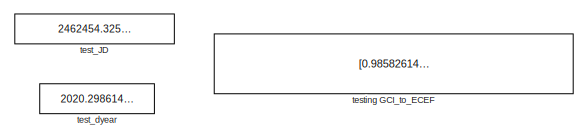
[diagram: root canvas - part 1/5, top left region]
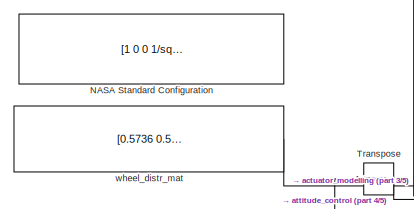
[diagram: root canvas - part 2/5, middle left region]
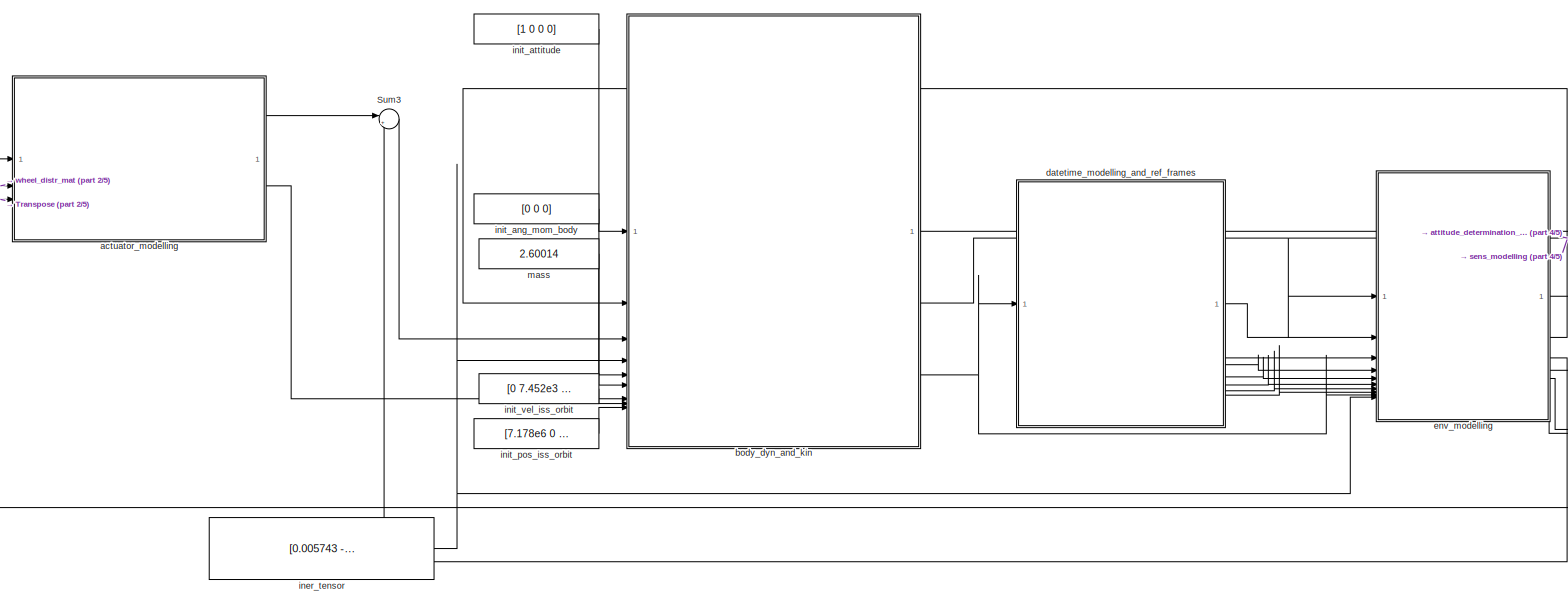
[diagram: root canvas - part 3/5, bottom center region]
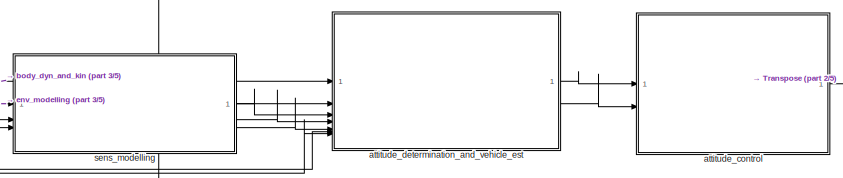
[diagram: root canvas - part 4/5, bottom right region]
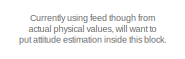
[diagram: root canvas - part 5/5, bottom right region]
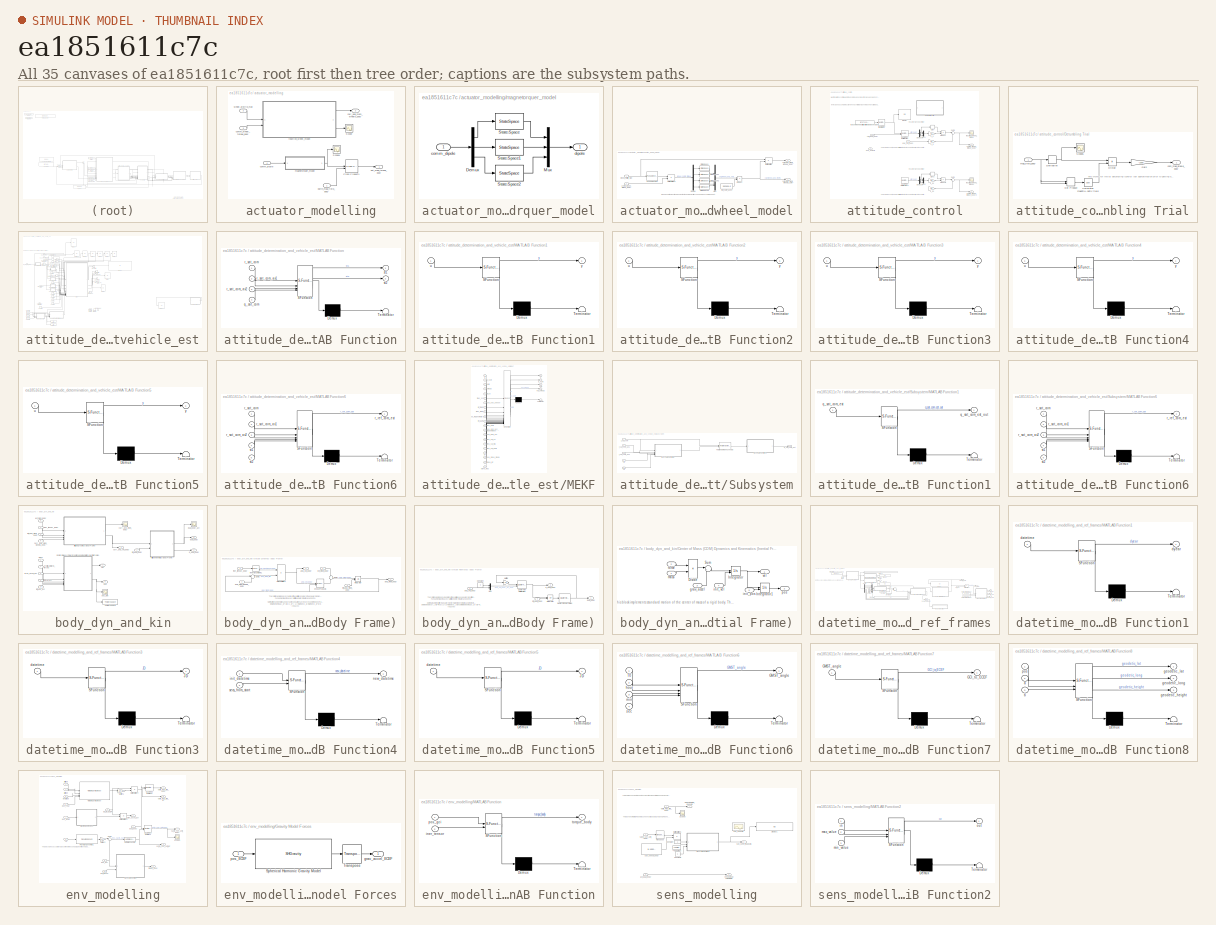
[diagram: thumbnail index - all 35 canvases of the model, root first then tree order]
MODEL slx_ea1851611c7c
KIND model
CONFIG AbsTol = auto
CONFIG EnableMultiTasking = off
CONFIG FixedStep = 0.1
CONFIG MaxStep = 1
CONFIG MinStep = 0.01
CONFIG RelTol = 1e-3
CONFIG SampleTimeConstraint = Unconstrained
CONFIG SolverName = FixedStepAuto
CONFIG StartTime = 0.0
CONFIG StopTime = 3600
BLOCK [Constant] NASA Standard Configuration
  Value = [1 0 0 1/sqrt(3) ; 0 1 0 1/sqrt(3) ; 0 0 1 1/sqrt(3)]
BLOCK [Sum] Sum3
  Inputs = |++
BLOCK [Math] Transpose
  Operator = transpose
BLOCK [SubSystem] actuator_modelling
BLOCK [Reference] actuator_modelling/Cross Product1  REF=matrix_library/Cross Product
  SourceBlock = matrix_library/Cross Product
  SourceType = CrossProduct
BLOCK [Scope] actuator_modelling/Scope
  Floating = off
  NumInputPorts = 1
  ScopeSpecificationString = Simulink.scopes.TimeScopeBlockCfg('CurrentConfiguration', extmgr.ConfigurationSet(extmgr.Configuration('Core','General UI',true),extmgr.Configuration('Core','Source UI',true),extmgr.Configuration('Sources','WiredSimulink',true,'DataLoggingVariableName','ScopeData1'),extmgr.Configuration('Visuals','Time Domain',true,'SerializedDisplays',{struct('MinYLimReal','-0.02462','MaxYLimReal','0.02472','YLab...<+1606ch>
BLOCK [Scope] actuator_modelling/Scope1
  Floating = off
  NumInputPorts = 1
  ScopeSpecificationString = Simulink.scopes.TimeScopeBlockCfg('CurrentConfiguration', extmgr.ConfigurationSet(extmgr.Configuration('Core','General UI',true),extmgr.Configuration('Core','Source UI',true),extmgr.Configuration('Sources','WiredSimulink',true,'DataLoggingVariableName','ScopeData2'),extmgr.Configuration('Visuals','Time Domain',true,'SerializedDisplays',{struct('MinYLimReal','-1.00000','MaxYLimReal','1.00000','YLab...<+1455ch>
BLOCK [Inport] actuator_modelling/comm_dipole
  Port = 4
BLOCK [Inport] actuator_modelling/comm_wheel_torque_body
  Port = 3
BLOCK [Outport] actuator_modelling/curr_ang_mom_wheels_body
  Port = 2
BLOCK [Inport] actuator_modelling/earth_mag_field_body
BLOCK [Outport] actuator_modelling/ext_mag_torque_body
BLOCK [SubSystem] actuator_modelling/magnetorquer_model
BLOCK [Demux] actuator_modelling/magnetorquer_model/Demux
  Outputs = 3
BLOCK [Mux] actuator_modelling/magnetorquer_model/Mux
  DisplayOption = bar
  Inputs = 3
BLOCK [StateSpace] actuator_modelling/magnetorquer_model/State-Space
  A = -71.31
  B = 8
  C = 8.914
  D = 0
  InitialCondition = 0
BLOCK [StateSpace] actuator_modelling/magnetorquer_model/State-Space1
  A = -71.31
  B = 8
  C = 8.914
  D = 0
  InitialCondition = 0
BLOCK [StateSpace] actuator_modelling/magnetorquer_model/State-Space2
  A = -71.31
  B = 8
  C = 8.914
  D = 0
  InitialCondition = 0
BLOCK [Inport] actuator_modelling/magnetorquer_model/comm_dipole
BLOCK [Outport] actuator_modelling/magnetorquer_model/dipole
BLOCK [SubSystem] actuator_modelling/reaction_wheel_model
BLOCK [Demux] actuator_modelling/reaction_wheel_model/Demux
BLOCK [Product] actuator_modelling/reaction_wheel_model/Matrix Multiply
  Multiplication = Matrix(*)
BLOCK [Product] actuator_modelling/reaction_wheel_model/Matrix Multiply2
  Multiplication = Matrix(*)
BLOCK [Mux] actuator_modelling/reaction_wheel_model/Mux
  DisplayOption = bar
BLOCK [Product] actuator_modelling/reaction_wheel_model/Product
BLOCK [Reference] actuator_modelling/reaction_wheel_model/Pseudoinverse  REF=dspinverses/Pseudoinverse
  SourceBlock = dspinverses/Pseudoinverse
  SourceType = Pseudoinverse
BLOCK [StateSpace] actuator_modelling/reaction_wheel_model/State-Space
  A = -0.02216
  B = 512
  C = 962.5
  D = 0
  InitialCondition = 0
  ParameterTunability = Unconstrained
BLOCK [StateSpace] actuator_modelling/reaction_wheel_model/State-Space1
  A = -0.02216
  B = 512
  C = 962.5
  D = 0
  InitialCondition = 0
  ParameterTunability = Unconstrained
BLOCK [StateSpace] actuator_modelling/reaction_wheel_model/State-Space2
  A = -0.02216
  B = 512
  C = 962.5
  D = 0
  InitialCondition = 0
  ParameterTunability = Unconstrained
BLOCK [StateSpace] actuator_modelling/reaction_wheel_model/State-Space3
  A = -0.02216
  B = 512
  C = 962.5
  D = 0
  InitialCondition = 0
  ParameterTunability = Unconstrained
BLOCK [Inport] actuator_modelling/reaction_wheel_model/comm_wheel_torque_body
  Port = 2
BLOCK [Outport] actuator_modelling/reaction_wheel_model/curr_ang_mom_wheels_body
BLOCK [Outport] actuator_modelling/reaction_wheel_model/curr_ang_mom_wheels_spin
  Port = 2
BLOCK [Constant] actuator_modelling/reaction_wheel_model/moi_spin_axes
  Value = 2.0292e-6
BLOCK [Inport] actuator_modelling/reaction_wheel_model/wheel_distrib_mat
BLOCK [Inport] actuator_modelling/wheel_distrib_mat
  Port = 2
BLOCK [SubSystem] attitude_control
BLOCK [Demux] attitude_control/Demux1
BLOCK [Demux] attitude_control/Demux2
BLOCK [SubSystem] attitude_control/Detumbling Trial
  Commented = on
BLOCK [Sqrt] attitude_control/Detumbling Trial/Calculates magntiude of magnetic field
BLOCK [Derivative] attitude_control/Detumbling Trial/Derivative
BLOCK [Product] attitude_control/Detumbling Trial/Divide
  Inputs = */
BLOCK [DotProduct] attitude_control/Detumbling Trial/Dot Product
  OutDataTypeStr = Inherit: Inherit via internal rule
BLOCK [Gain] attitude_control/Detumbling Trial/Gain
  Gain = -1000
BLOCK [Scope] attitude_control/Detumbling Trial/Scope6
  Floating = off
  NumInputPorts = 1
  ScopeSpecificationString = Simulink.scopes.TimeScopeBlockCfg('CurrentConfiguration', extmgr.ConfigurationSet(extmgr.Configuration('Core','General UI',true),extmgr.Configuration('Core','Source UI',true),extmgr.Configuration('Sources','WiredSimulink',true,'DataLoggingVariableName','ScopeData5'),extmgr.Configuration('Visuals','Time Domain',true,'SerializedDisplays',{struct('MinYLimReal','-0.0000003','MaxYLimReal','0.00000032',...<+1495ch>
BLOCK [Outport] attitude_control/Detumbling Trial/com_mag_dipole_body
BLOCK [Inport] attitude_control/Detumbling Trial/mag_field_body
BLOCK [Display] attitude_control/Display
  Decimation = 1
BLOCK [Mux] attitude_control/Mux1
  DisplayOption = bar
  Inputs = 3
BLOCK [Mux] attitude_control/Mux2
  DisplayOption = bar
  Inputs = 3
BLOCK [Product] attitude_control/Product
BLOCK [Product] attitude_control/Product1
BLOCK [Reference] attitude_control/Quaternion Inverse1  REF=aerolibutil/Quaternion
Inverse
  SourceBlock = aerolibutil/Quaternion\nInverse
  SourceType = Quaternion Inverse
BLOCK [Reference] attitude_control/Quaternion Multiplication  REF=aerolibutil/Quaternion
Multiplication
  SourceBlock = aerolibutil/Quaternion\nMultiplication
  SourceType = Quaternion Multiplication
BLOCK [Reference] attitude_control/Quaternion Multiplication1  REF=aerolibutil/Quaternion
Multiplication
  SourceBlock = aerolibutil/Quaternion\nMultiplication
  SourceType = Quaternion Multiplication
BLOCK [Signum] attitude_control/Sign
BLOCK [Signum] attitude_control/Sign1
BLOCK [Sum] attitude_control/Sum1
  Inputs = |++
BLOCK [Sum] attitude_control/Sum6
  Inputs = |++
BLOCK [Inport] attitude_control/ang_vel_body
BLOCK [Outport] attitude_control/comm_wheel_torque_body
BLOCK [Outport] attitude_control/comm_wheel_torque_body1
  Port = 2
BLOCK [Inport] attitude_control/curr_quat_body
  Port = 2
BLOCK [Gain] attitude_control/k_d
  Gain = 0.1
BLOCK [Gain] attitude_control/k_d1
  Gain = 0.1
BLOCK [Gain] attitude_control/k_p
  Gain = 0.2
BLOCK [Gain] attitude_control/k_p1
  Gain = 0.2
BLOCK [Scope] attitude_control/reaction_wheel_torque
  Floating = off
  NumInputPorts = 1
  ScopeSpecificationString = Simulink.scopes.TimeScopeBlockCfg('CurrentConfiguration', extmgr.ConfigurationSet(extmgr.Configuration('Core','General UI',true),extmgr.Configuration('Core','Source UI',true),extmgr.Configuration('Sources','WiredSimulink',true,'DataLoggingVariableName','ScopeData2'),extmgr.Configuration('Visuals','Time Domain',true,'SerializedDisplays',{struct('MinYLimReal','-0.1696','MaxYLimReal','0.11215','YLabe...<+1614ch>
BLOCK [Scope] attitude_control/reaction_wheel_torque1
  Floating = off
  NumInputPorts = 1
  ScopeSpecificationString = Simulink.scopes.TimeScopeBlockCfg('CurrentConfiguration', extmgr.ConfigurationSet(extmgr.Configuration('Core','General UI',true),extmgr.Configuration('Core','Source UI',true),extmgr.Configuration('Sources','WiredSimulink',true,'DataLoggingVariableName','ScopeData1'),extmgr.Configuration('Visuals','Time Domain',true,'SerializedDisplays',{struct('MinYLimReal','-0.1696','MaxYLimReal','0.11215','YLabe...<+1614ch>
BLOCK [Constant] attitude_control/test commanded attitude (first value is constant)
  Value = [0.7071 0 0.7071 0]
BLOCK [Inport] attitude_control/use_STEVE
  Port = 3
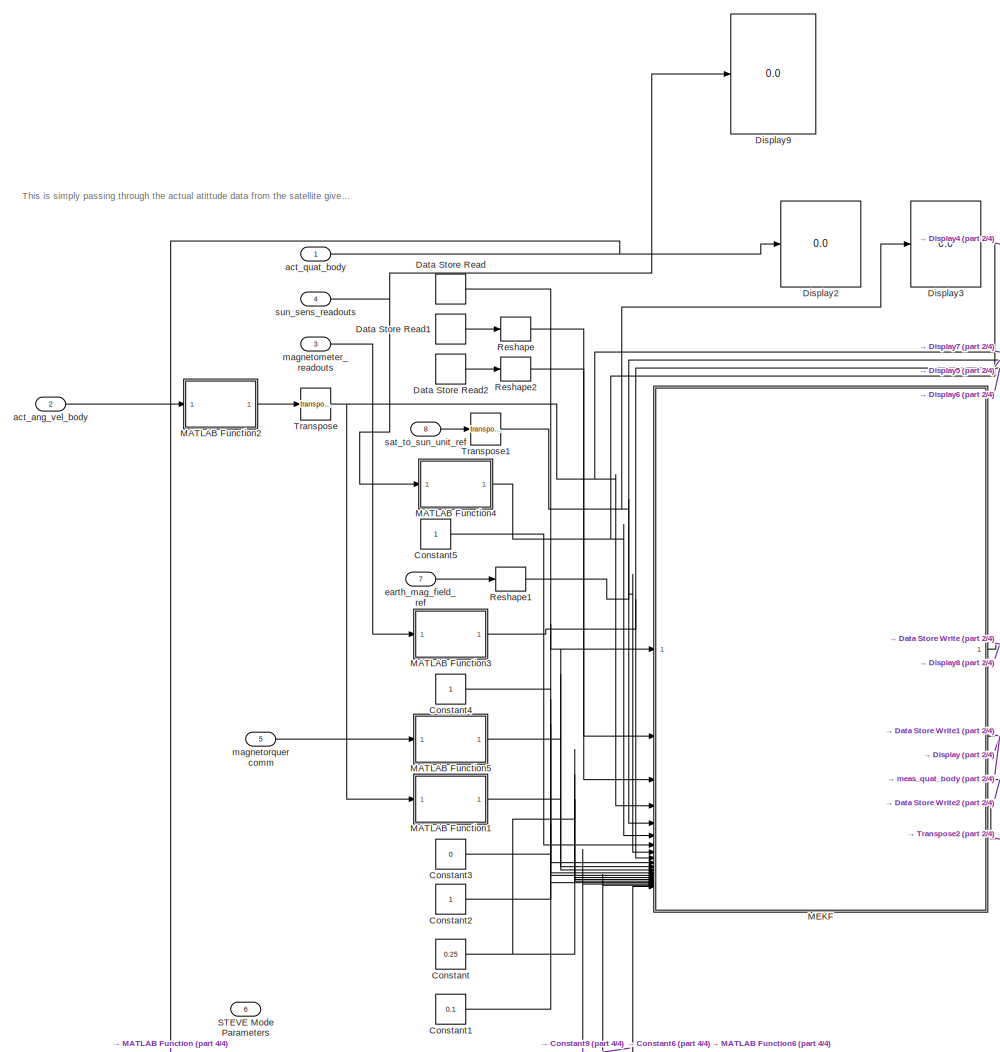
[diagram: attitude_determination_and_vehicle_est - part 1/4, left side, full height]
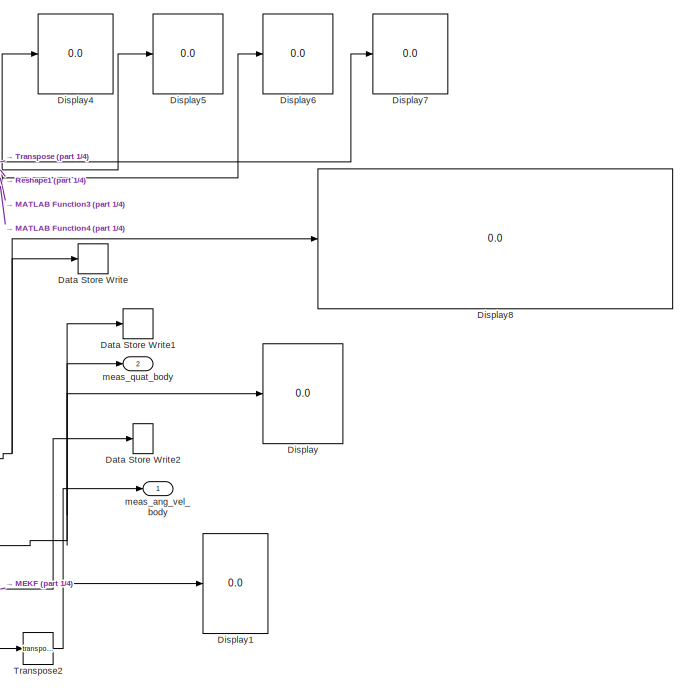
[diagram: attitude_determination_and_vehicle_est - part 2/4, central region]
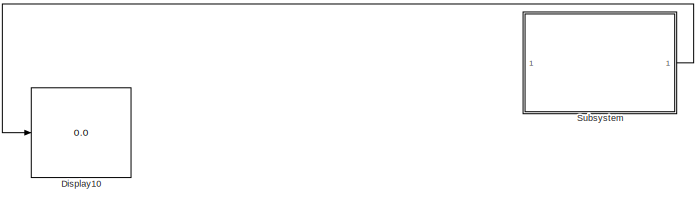
[diagram: attitude_determination_and_vehicle_est - part 3/4, bottom right region]
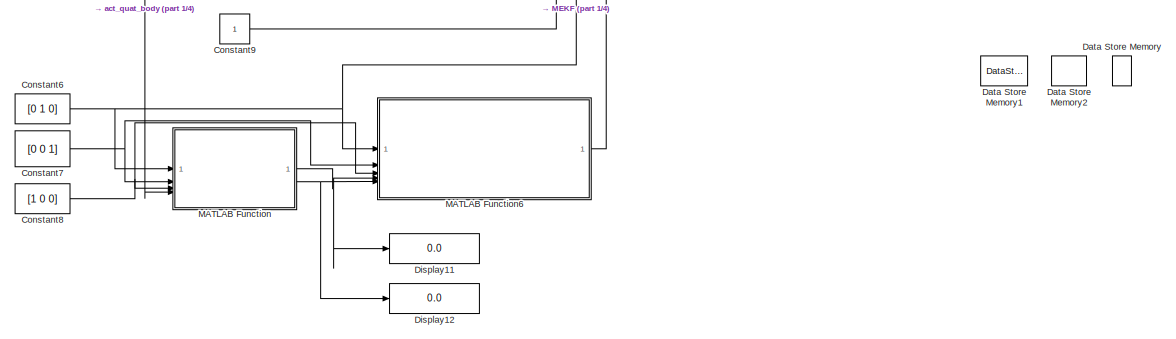
[diagram: attitude_determination_and_vehicle_est - part 4/4, bottom left region]
BLOCK [SubSystem] attitude_determination_and_vehicle_est
BLOCK [Constant] attitude_determination_and_vehicle_est/Constant
  Value = 0.25
BLOCK [Constant] attitude_determination_and_vehicle_est/Constant1
  Value = 0.1
BLOCK [Constant] attitude_determination_and_vehicle_est/Constant2
BLOCK [Constant] attitude_determination_and_vehicle_est/Constant3
  Value = 0
BLOCK [Constant] attitude_determination_and_vehicle_est/Constant4
BLOCK [Constant] attitude_determination_and_vehicle_est/Constant5
BLOCK [Constant] attitude_determination_and_vehicle_est/Constant6
  Value = [0 1 0]
BLOCK [Constant] attitude_determination_and_vehicle_est/Constant7
  Value = [0 0 1]
BLOCK [Constant] attitude_determination_and_vehicle_est/Constant8
  Value = [1 0 0]
BLOCK [Constant] attitude_determination_and_vehicle_est/Constant9
BLOCK [DataStoreMemory] attitude_determination_and_vehicle_est/Data Store Memory
  DataStoreName = P
  InitialValue = diag([1*ones(1,3), 1*ones(1,3)])
  ShowAdditionalParam = off
  WriteAfterWriteMsg = warning
BLOCK [DataStoreMemory] attitude_determination_and_vehicle_est/Data Store Memory1
  DataStoreName = q_n2m
  Dimensions = [1,4]
  InitialValue = [1, 0, 0, 0]
  ShowAdditionalParam = off
  WriteAfterWriteMsg = warning
BLOCK [DataStoreMemory] attitude_determination_and_vehicle_est/Data Store Memory2
  DataStoreName = beta
  Dimensions = [3,1]
  InitialValue = [0;0;0]
  ShowAdditionalParam = off
  WriteAfterWriteMsg = warning
BLOCK [DataStoreRead] attitude_determination_and_vehicle_est/Data Store Read
  DataStoreName = P
  IndexOptions = Index vector (dialog)
  Indices = 1
  OutputSizes = 1
BLOCK [DataStoreRead] attitude_determination_and_vehicle_est/Data Store Read1
  DataStoreName = q_n2m
  IndexOptions = Index vector (dialog)
  Indices = 1
  OutputSizes = 1
BLOCK [DataStoreRead] attitude_determination_and_vehicle_est/Data Store Read2
  DataStoreName = beta
  IndexOptions = Index vector (dialog)
  Indices = 1
  OutputSizes = 1
BLOCK [DataStoreWrite] attitude_determination_and_vehicle_est/Data Store Write
  DataStoreName = P
  IndexOptions = Index vector (dialog)
  Indices = 1
  OutputSizes = 1
BLOCK [DataStoreWrite] attitude_determination_and_vehicle_est/Data Store Write1
  DataStoreName = q_n2m
  IndexOptions = Index vector (dialog)
  Indices = 1
  OutputSizes = 1
BLOCK [DataStoreWrite] attitude_determination_and_vehicle_est/Data Store Write2
  DataStoreName = beta
  IndexOptions = Index vector (dialog)
  Indices = 1
  OutputSizes = 1
BLOCK [Display] attitude_determination_and_vehicle_est/Display
  Decimation = 1
BLOCK [Display] attitude_determination_and_vehicle_est/Display1
  Decimation = 1
BLOCK [Display] attitude_determination_and_vehicle_est/Display10
  Commented = on
  Decimation = 1
BLOCK [Display] attitude_determination_and_vehicle_est/Display11
  Decimation = 1
BLOCK [Display] attitude_determination_and_vehicle_est/Display12
  Decimation = 1
BLOCK [Display] attitude_determination_and_vehicle_est/Display2
  Decimation = 1
BLOCK [Display] attitude_determination_and_vehicle_est/Display3
  Decimation = 1
BLOCK [Display] attitude_determination_and_vehicle_est/Display4
  Decimation = 1
BLOCK [Display] attitude_determination_and_vehicle_est/Display5
  Decimation = 1
BLOCK [Display] attitude_determination_and_vehicle_est/Display6
  Decimation = 1
BLOCK [Display] attitude_determination_and_vehicle_est/Display7
  Decimation = 1
BLOCK [Display] attitude_determination_and_vehicle_est/Display8
  Decimation = 1
BLOCK [Display] attitude_determination_and_vehicle_est/Display9
  Decimation = 1
BLOCK [SubSystem] attitude_determination_and_vehicle_est/MATLAB Function
  ErrorFcn = Stateflow.Translate.translate
  LibrarySourceBlock = simulink/User-Defined\nFunctions/MATLAB Function
  PermitHierarchicalResolution = ExplicitOnly
  SFBlockType = MATLAB Function
  TreatAsAtomicUnit = on
BLOCK [Demux] attitude_determination_and_vehicle_est/MATLAB Function/ Demux 
  Outputs = 1
BLOCK [S-Function] attitude_determination_and_vehicle_est/MATLAB Function/ SFunction 
  EnableBusSupport = on
  FunctionName = sf_sfun
  PortCounts = [4 3]
  SFcnIsStateOwnerBlock = off
  SFunctionDeploymentMode = off
  Tag = Stateflow S-Function 16
BLOCK [Terminator] attitude_determination_and_vehicle_est/MATLAB Function/ Terminator 
BLOCK [Inport] attitude_determination_and_vehicle_est/MATLAB Function/q_sat_com
  Port = 4
BLOCK [Inport] attitude_determination_and_vehicle_est/MATLAB Function/r_sat_com
BLOCK [Inport] attitude_determination_and_vehicle_est/MATLAB Function/r_sat_com_ax1
  Port = 2
BLOCK [Inport] attitude_determination_and_vehicle_est/MATLAB Function/r_sat_com_ax2
  Port = 3
BLOCK [Outport] attitude_determination_and_vehicle_est/MATLAB Function/st1
BLOCK [Outport] attitude_determination_and_vehicle_est/MATLAB Function/st2
  Port = 2
BLOCK [SubSystem] attitude_determination_and_vehicle_est/MATLAB Function1
  ErrorFcn = Stateflow.Translate.translate
  LibrarySourceBlock = simulink/User-Defined\nFunctions/MATLAB Function
  PermitHierarchicalResolution = ExplicitOnly
  SFBlockType = MATLAB Function
  TreatAsAtomicUnit = on
BLOCK [Demux] attitude_determination_and_vehicle_est/MATLAB Function1/ Demux 
  Outputs = 1
BLOCK [S-Function] attitude_determination_and_vehicle_est/MATLAB Function1/ SFunction 
  EnableBusSupport = on
  FunctionName = sf_sfun
  PortCounts = [1 2]
  SFcnIsStateOwnerBlock = off
  SFunctionDeploymentMode = off
  Tag = Stateflow S-Function 1
BLOCK [Terminator] attitude_determination_and_vehicle_est/MATLAB Function1/ Terminator 
BLOCK [Inport] attitude_determination_and_vehicle_est/MATLAB Function1/u
BLOCK [Outport] attitude_determination_and_vehicle_est/MATLAB Function1/y
BLOCK [SubSystem] attitude_determination_and_vehicle_est/MATLAB Function2
  ErrorFcn = Stateflow.Translate.translate
  LibrarySourceBlock = simulink/User-Defined\nFunctions/MATLAB Function
  PermitHierarchicalResolution = ExplicitOnly
  SFBlockType = MATLAB Function
  TreatAsAtomicUnit = on
BLOCK [Demux] attitude_determination_and_vehicle_est/MATLAB Function2/ Demux 
  Outputs = 1
BLOCK [S-Function] attitude_determination_and_vehicle_est/MATLAB Function2/ SFunction 
  EnableBusSupport = on
  FunctionName = sf_sfun
  PortCounts = [1 2]
  SFcnIsStateOwnerBlock = off
  SFunctionDeploymentMode = off
  Tag = Stateflow S-Function 3
BLOCK [Terminator] attitude_determination_and_vehicle_est/MATLAB Function2/ Terminator 
BLOCK [Inport] attitude_determination_and_vehicle_est/MATLAB Function2/u
BLOCK [Outport] attitude_determination_and_vehicle_est/MATLAB Function2/y
BLOCK [SubSystem] attitude_determination_and_vehicle_est/MATLAB Function3
  ErrorFcn = Stateflow.Translate.translate
  LibrarySourceBlock = simulink/User-Defined\nFunctions/MATLAB Function
  PermitHierarchicalResolution = ExplicitOnly
  SFBlockType = MATLAB Function
  TreatAsAtomicUnit = on
BLOCK [Demux] attitude_determination_and_vehicle_est/MATLAB Function3/ Demux 
  Outputs = 1
BLOCK [S-Function] attitude_determination_and_vehicle_est/MATLAB Function3/ SFunction 
  EnableBusSupport = on
  FunctionName = sf_sfun
  PortCounts = [1 2]
  SFcnIsStateOwnerBlock = off
  SFunctionDeploymentMode = off
  Tag = Stateflow S-Function 5
BLOCK [Terminator] attitude_determination_and_vehicle_est/MATLAB Function3/ Terminator 
BLOCK [Inport] attitude_determination_and_vehicle_est/MATLAB Function3/u
BLOCK [Outport] attitude_determination_and_vehicle_est/MATLAB Function3/y
BLOCK [SubSystem] attitude_determination_and_vehicle_est/MATLAB Function4
  ErrorFcn = Stateflow.Translate.translate
  LibrarySourceBlock = simulink/User-Defined\nFunctions/MATLAB Function
  PermitHierarchicalResolution = ExplicitOnly
  SFBlockType = MATLAB Function
  TreatAsAtomicUnit = on
BLOCK [Demux] attitude_determination_and_vehicle_est/MATLAB Function4/ Demux 
  Outputs = 1
BLOCK [S-Function] attitude_determination_and_vehicle_est/MATLAB Function4/ SFunction 
  EnableBusSupport = on
  FunctionName = sf_sfun
  PortCounts = [1 2]
  SFcnIsStateOwnerBlock = off
  SFunctionDeploymentMode = off
  Tag = Stateflow S-Function 7
BLOCK [Terminator] attitude_determination_and_vehicle_est/MATLAB Function4/ Terminator 
BLOCK [Inport] attitude_determination_and_vehicle_est/MATLAB Function4/u
BLOCK [Outport] attitude_determination_and_vehicle_est/MATLAB Function4/y
BLOCK [SubSystem] attitude_determination_and_vehicle_est/MATLAB Function5
  ErrorFcn = Stateflow.Translate.translate
  LibrarySourceBlock = simulink/User-Defined\nFunctions/MATLAB Function
  PermitHierarchicalResolution = ExplicitOnly
  SFBlockType = MATLAB Function
  TreatAsAtomicUnit = on
BLOCK [Demux] attitude_determination_and_vehicle_est/MATLAB Function5/ Demux 
  Outputs = 1
BLOCK [S-Function] attitude_determination_and_vehicle_est/MATLAB Function5/ SFunction 
  EnableBusSupport = on
  FunctionName = sf_sfun
  PortCounts = [1 2]
  SFcnIsStateOwnerBlock = off
  SFunctionDeploymentMode = off
  Tag = Stateflow S-Function 15
BLOCK [Terminator] attitude_determination_and_vehicle_est/MATLAB Function5/ Terminator 
BLOCK [Inport] attitude_determination_and_vehicle_est/MATLAB Function5/u
BLOCK [Outport] attitude_determination_and_vehicle_est/MATLAB Function5/y
BLOCK [SubSystem] attitude_determination_and_vehicle_est/MATLAB Function6
  ErrorFcn = Stateflow.Translate.translate
  LibrarySourceBlock = simulink/User-Defined\nFunctions/MATLAB Function
  PermitHierarchicalResolution = ExplicitOnly
  SFBlockType = MATLAB Function
  TreatAsAtomicUnit = on
BLOCK [Demux] attitude_determination_and_vehicle_est/MATLAB Function6/ Demux 
  Outputs = 1
BLOCK [S-Function] attitude_determination_and_vehicle_est/MATLAB Function6/ SFunction 
  EnableBusSupport = on
  FunctionName = sf_sfun
  PortCounts = [5 2]
  SFcnIsStateOwnerBlock = off
  SFunctionDeploymentMode = off
  Tag = Stateflow S-Function 17
BLOCK [Terminator] attitude_determination_and_vehicle_est/MATLAB Function6/ Terminator 
BLOCK [Outport] attitude_determination_and_vehicle_est/MATLAB Function6/r_ref_com_est
BLOCK [Inport] attitude_determination_and_vehicle_est/MATLAB Function6/r_sat_com
BLOCK [Inport] attitude_determination_and_vehicle_est/MATLAB Function6/r_sat_com_ax1
  Port = 2
BLOCK [Inport] attitude_determination_and_vehicle_est/MATLAB Function6/r_sat_com_ax2
  Port = 3
BLOCK [Inport] attitude_determination_and_vehicle_est/MATLAB Function6/st1
  Port = 4
BLOCK [Inport] attitude_determination_and_vehicle_est/MATLAB Function6/st2
  Port = 5
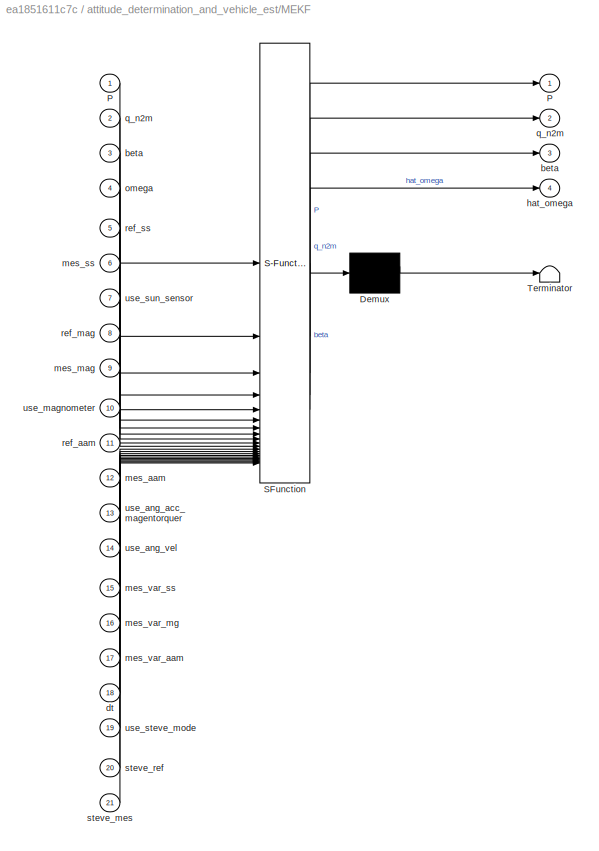
BLOCK [SubSystem] attitude_determination_and_vehicle_est/MEKF
  ErrorFcn = Stateflow.Translate.translate
  LibrarySourceBlock = simulink/User-Defined\nFunctions/MATLAB Function
  PermitHierarchicalResolution = ExplicitOnly
  SFBlockType = MATLAB Function
  TreatAsAtomicUnit = on
BLOCK [Demux] attitude_determination_and_vehicle_est/MEKF/ Demux 
  Outputs = 1
BLOCK [S-Function] attitude_determination_and_vehicle_est/MEKF/ SFunction 
  EnableBusSupport = on
  FunctionName = sf_sfun
  PortCounts = [21 5]
  SFcnIsStateOwnerBlock = off
  SFunctionDeploymentMode = off
  Tag = Stateflow S-Function 2
BLOCK [Terminator] attitude_determination_and_vehicle_est/MEKF/ Terminator 
BLOCK [Outport] attitude_determination_and_vehicle_est/MEKF/P
BLOCK [Inport] attitude_determination_and_vehicle_est/MEKF/P 
BLOCK [Outport] attitude_determination_and_vehicle_est/MEKF/beta
  Port = 3
BLOCK [Inport] attitude_determination_and_vehicle_est/MEKF/beta 
  Port = 3
BLOCK [Inport] attitude_determination_and_vehicle_est/MEKF/dt
  Port = 18
BLOCK [Outport] attitude_determination_and_vehicle_est/MEKF/hat_omega
  Port = 4
BLOCK [Inport] attitude_determination_and_vehicle_est/MEKF/mes_aam
  Port = 12
BLOCK [Inport] attitude_determination_and_vehicle_est/MEKF/mes_mag
  Port = 9
BLOCK [Inport] attitude_determination_and_vehicle_est/MEKF/mes_ss
  Port = 6
BLOCK [Inport] attitude_determination_and_vehicle_est/MEKF/mes_var_aam
  Port = 17
BLOCK [Inport] attitude_determination_and_vehicle_est/MEKF/mes_var_mg
  Port = 16
BLOCK [Inport] attitude_determination_and_vehicle_est/MEKF/mes_var_ss
  Port = 15
BLOCK [Inport] attitude_determination_and_vehicle_est/MEKF/omega
  Port = 4
BLOCK [Outport] attitude_determination_and_vehicle_est/MEKF/q_n2m
  Port = 2
BLOCK [Inport] attitude_determination_and_vehicle_est/MEKF/q_n2m 
  Port = 2
BLOCK [Inport] attitude_determination_and_vehicle_est/MEKF/ref_aam
  Port = 11
BLOCK [Inport] attitude_determination_and_vehicle_est/MEKF/ref_mag
  Port = 8
BLOCK [Inport] attitude_determination_and_vehicle_est/MEKF/ref_ss
  Port = 5
BLOCK [Inport] attitude_determination_and_vehicle_est/MEKF/steve_mes
  Port = 21
BLOCK [Inport] attitude_determination_and_vehicle_est/MEKF/steve_ref
  Port = 20
BLOCK [Inport] attitude_determination_and_vehicle_est/MEKF/use_ang_acc_magentorquer
  Port = 13
BLOCK [Inport] attitude_determination_and_vehicle_est/MEKF/use_ang_vel
  Port = 14
BLOCK [Inport] attitude_determination_and_vehicle_est/MEKF/use_magnometer
  Port = 10
BLOCK [Inport] attitude_determination_and_vehicle_est/MEKF/use_steve_mode
  Port = 19
BLOCK [Inport] attitude_determination_and_vehicle_est/MEKF/use_sun_sensor
  Port = 7
BLOCK [Reshape] attitude_determination_and_vehicle_est/Reshape
  OutputDimensionality = Row vector (2-D)
BLOCK [Reshape] attitude_determination_and_vehicle_est/Reshape1
  OutputDimensionality = Row vector (2-D)
BLOCK [Reshape] attitude_determination_and_vehicle_est/Reshape2
  OutputDimensionality = Column vector (2-D)
BLOCK [Inport] attitude_determination_and_vehicle_est/STEVE Mode Parameters
  Port = 6
BLOCK [SubSystem] attitude_determination_and_vehicle_est/Subsystem
  Commented = on
BLOCK [SubSystem] attitude_determination_and_vehicle_est/Subsystem/MATLAB Function1
  ErrorFcn = Stateflow.Translate.translate
  LibrarySourceBlock = simulink/User-Defined\nFunctions/MATLAB Function
  PermitHierarchicalResolution = ExplicitOnly
  SFBlockType = MATLAB Function
  TreatAsAtomicUnit = on
BLOCK [Demux] attitude_determination_and_vehicle_est/Subsystem/MATLAB Function1/ Demux 
  Outputs = 1
BLOCK [S-Function] attitude_determination_and_vehicle_est/Subsystem/MATLAB Function1/ SFunction 
  EnableBusSupport = off
  FunctionName = sf_sfun
  PortCounts = [1 2]
  SFcnIsStateOwnerBlock = off
  SFunctionDeploymentMode = off
  Tag = Stateflow S-Function 19
BLOCK [Terminator] attitude_determination_and_vehicle_est/Subsystem/MATLAB Function1/ Terminator 
BLOCK [Inport] attitude_determination_and_vehicle_est/Subsystem/MATLAB Function1/q_sat_com_est
BLOCK [Outport] attitude_determination_and_vehicle_est/Subsystem/MATLAB Function1/q_sat_com_est_out
BLOCK [SubSystem] attitude_determination_and_vehicle_est/Subsystem/MATLAB Function6
  ErrorFcn = Stateflow.Translate.translate
  LibrarySourceBlock = simulink/User-Defined\nFunctions/MATLAB Function
  PermitHierarchicalResolution = ExplicitOnly
  SFBlockType = MATLAB Function
  TreatAsAtomicUnit = on
BLOCK [Demux] attitude_determination_and_vehicle_est/Subsystem/MATLAB Function6/ Demux 
  Outputs = 1
BLOCK [S-Function] attitude_determination_and_vehicle_est/Subsystem/MATLAB Function6/ SFunction 
  EnableBusSupport = off
  FunctionName = sf_sfun
  PortCounts = [5 2]
  SFcnIsStateOwnerBlock = off
  SFunctionDeploymentMode = off
  Tag = Stateflow S-Function 18
BLOCK [Terminator] attitude_determination_and_vehicle_est/Subsystem/MATLAB Function6/ Terminator 
BLOCK [Outport] attitude_determination_and_vehicle_est/Subsystem/MATLAB Function6/r_ref_com_est
BLOCK [Inport] attitude_determination_and_vehicle_est/Subsystem/MATLAB Function6/r_sat_com
BLOCK [Inport] attitude_determination_and_vehicle_est/Subsystem/MATLAB Function6/r_sat_com_ax1
  Port = 2
BLOCK [Inport] attitude_determination_and_vehicle_est/Subsystem/MATLAB Function6/r_sat_com_ax2
  Port = 3
BLOCK [Inport] attitude_determination_and_vehicle_est/Subsystem/MATLAB Function6/st1
  Port = 4
BLOCK [Inport] attitude_determination_and_vehicle_est/Subsystem/MATLAB Function6/st2
  Port = 5
BLOCK [Reference] attitude_determination_and_vehicle_est/Subsystem/Rotation Between 2 Vectors  REF=vrlib/Utilities/Rotation Between
2 Vectors
  SourceBlock = vrlib/Utilities/Rotation Between\n2 Vectors
  SourceType = Rotation Between 2 Vectors
BLOCK [Outport] attitude_determination_and_vehicle_est/Subsystem/q_sat_com_est
BLOCK [Inport] attitude_determination_and_vehicle_est/Subsystem/r_sat_com
BLOCK [Inport] attitude_determination_and_vehicle_est/Subsystem/r_sat_com_ax1
  Port = 2
BLOCK [Inport] attitude_determination_and_vehicle_est/Subsystem/r_sat_com_ax2
  Port = 3
BLOCK [Inport] attitude_determination_and_vehicle_est/Subsystem/st1
  Port = 4
BLOCK [Inport] attitude_determination_and_vehicle_est/Subsystem/st2
  Port = 5
BLOCK [Math] attitude_determination_and_vehicle_est/Transpose
  Operator = transpose
BLOCK [Math] attitude_determination_and_vehicle_est/Transpose1
  Operator = transpose
BLOCK [Math] attitude_determination_and_vehicle_est/Transpose2
  Operator = transpose
BLOCK [Inport] attitude_determination_and_vehicle_est/act_ang_vel_body
  Port = 2
BLOCK [Inport] attitude_determination_and_vehicle_est/act_quat_body
BLOCK [Inport] attitude_determination_and_vehicle_est/earth_mag_field_ref
  Port = 7
BLOCK [Inport] attitude_determination_and_vehicle_est/magnetometer_readouts
  Port = 3
BLOCK [Inport] attitude_determination_and_vehicle_est/magnetorquer comm
  Port = 5
BLOCK [Outport] attitude_determination_and_vehicle_est/meas_ang_vel_body
BLOCK [Outport] attitude_determination_and_vehicle_est/meas_quat_body
  Port = 2
BLOCK [Inport] attitude_determination_and_vehicle_est/sat_to_sun_unit_ref
  Port = 8
BLOCK [Inport] attitude_determination_and_vehicle_est/sun_sens_readouts
  Port = 4
BLOCK [SubSystem] body_dyn_and_kin
BLOCK [SubSystem] body_dyn_and_kin/Attitude Dynamics (Body Frame)
BLOCK [Reference] body_dyn_and_kin/Attitude Dynamics (Body Frame)/Cross Product1  REF=matrix_library/Cross Product
  SourceBlock = matrix_library/Cross Product
  SourceType = CrossProduct
BLOCK [Integrator] body_dyn_and_kin/Attitude Dynamics (Body Frame)/Integrator
  InitialConditionSource = external
BLOCK [Reference] body_dyn_and_kin/Attitude Dynamics (Body Frame)/Invert 3x3 Matrix1  REF=aerolibutil/Invert 
3x3 Matrix
  SourceBlock = aerolibutil/Invert \n3x3 Matrix
  SourceType = Invert 3x3 Matrix
BLOCK [Product] body_dyn_and_kin/Attitude Dynamics (Body Frame)/Matrix Multiply1
  Multiplication = Matrix(*)
BLOCK [Sum] body_dyn_and_kin/Attitude Dynamics (Body Frame)/Sum1
  Inputs = +-
BLOCK [Sum] body_dyn_and_kin/Attitude Dynamics (Body Frame)/Sum2
  Inputs = |+-
BLOCK [Outport] body_dyn_and_kin/Attitude Dynamics (Body Frame)/ang_mom_body
BLOCK [Inport] body_dyn_and_kin/Attitude Dynamics (Body Frame)/ang_mom_wheels_body
  Port = 4
BLOCK [Outport] body_dyn_and_kin/Attitude Dynamics (Body Frame)/ang_vel_body
  Port = 2
BLOCK [Inport] body_dyn_and_kin/Attitude Dynamics (Body Frame)/ext_mom_body
BLOCK [Inport] body_dyn_and_kin/Attitude Dynamics (Body Frame)/iner_tensor_body
  Port = 2
BLOCK [Inport] body_dyn_and_kin/Attitude Dynamics (Body Frame)/init_ang_mom_body
  Port = 3
BLOCK [SubSystem] body_dyn_and_kin/Attitude Kinematics (Body Frame)
BLOCK [Constant] body_dyn_and_kin/Attitude Kinematics (Body Frame)/Constant
  Value = 0
BLOCK [Integrator] body_dyn_and_kin/Attitude Kinematics (Body Frame)/Integrator
  InitialConditionSource = external
BLOCK [Gain] body_dyn_and_kin/Attitude Kinematics (Body Frame)/Multiply
  Gain = 0.5
BLOCK [Mux] body_dyn_and_kin/Attitude Kinematics (Body Frame)/Mux
  DisplayOption = bar
  Inputs = 2
BLOCK [Reference] body_dyn_and_kin/Attitude Kinematics (Body Frame)/Quaternion Multiplication  REF=aerolibutil/Quaternion
Multiplication
  SourceBlock = aerolibutil/Quaternion\nMultiplication
  SourceType = Quaternion Multiplication
BLOCK [Reference] body_dyn_and_kin/Attitude Kinematics (Body Frame)/Quaternion Normalize  REF=sharedutil/Quaternion
Normalize
  SourceBlock = sharedutil/Quaternion\nNormalize
  SourceType = Quaternion Normalize
BLOCK [Inport] body_dyn_and_kin/Attitude Kinematics (Body Frame)/ang_vel_body
BLOCK [Outport] body_dyn_and_kin/Attitude Kinematics (Body Frame)/d_quat_body
  Port = 2
BLOCK [Inport] body_dyn_and_kin/Attitude Kinematics (Body Frame)/init_quat_body
  Port = 2
BLOCK [Outport] body_dyn_and_kin/Attitude Kinematics (Body Frame)/quat_body
BLOCK [SubSystem] body_dyn_and_kin/Center of Mass (COM) Dynamics and Kinematics (Inertial Frame)
BLOCK [Product] body_dyn_and_kin/Center of Mass (COM) Dynamics and Kinematics (Inertial Frame)/Divide
  Inputs = */
BLOCK [Integrator] body_dyn_and_kin/Center of Mass (COM) Dynamics and Kinematics (Inertial Frame)/Integrator
  InitialConditionSource = external
BLOCK [Integrator] body_dyn_and_kin/Center of Mass (COM) Dynamics and Kinematics (Inertial Frame)/Integrator1
  InitialConditionSource = external
BLOCK [Sum] body_dyn_and_kin/Center of Mass (COM) Dynamics and Kinematics (Inertial Frame)/Sum
  Inputs = |++
BLOCK [Inport] body_dyn_and_kin/Center of Mass (COM) Dynamics and Kinematics (Inertial Frame)/force
  Port = 2
BLOCK [Inport] body_dyn_and_kin/Center of Mass (COM) Dynamics and Kinematics (Inertial Frame)/grav_accel
  Port = 3
BLOCK [Inport] body_dyn_and_kin/Center of Mass (COM) Dynamics and Kinematics (Inertial Frame)/init_pos
  Port = 5
BLOCK [Inport] body_dyn_and_kin/Center of Mass (COM) Dynamics and Kinematics (Inertial Frame)/init_vel
  Port = 4
BLOCK [Inport] body_dyn_and_kin/Center of Mass (COM) Dynamics and Kinematics (Inertial Frame)/mass
BLOCK [Outport] body_dyn_and_kin/Center of Mass (COM) Dynamics and Kinematics (Inertial Frame)/pos
  Port = 2
BLOCK [Outport] body_dyn_and_kin/Center of Mass (COM) Dynamics and Kinematics (Inertial Frame)/vel
BLOCK [ToWorkspace] body_dyn_and_kin/To Workspace
  FixptAsFi = on
  MaxDataPoints = inf
  SampleTime = -1
  VariableName = pos
BLOCK [Scope] body_dyn_and_kin/curr_ang_mom_body
  Floating = off
  NumInputPorts = 1
  ScopeSpecificationString = Simulink.scopes.TimeScopeBlockCfg('CurrentConfiguration', extmgr.ConfigurationSet(extmgr.Configuration('Core','General UI',true),extmgr.Configuration('Core','Source UI',true),extmgr.Configuration('Sources','WiredSimulink',true,'DataLoggingVariableName','ScopeData1'),extmgr.Configuration('Visuals','Time Domain',true,'SerializedDisplays',{struct('MinYLimReal','-0.00017','MaxYLimReal','0.00014','YLab...<+1479ch>
BLOCK [Inport] body_dyn_and_kin/curr_ang_mom_wheels_body
  Port = 8
BLOCK [Outport] body_dyn_and_kin/curr_ang_vel_body
BLOCK [Outport] body_dyn_and_kin/d_quat_body
  Port = 3
BLOCK [Inport] body_dyn_and_kin/ext_mom_body
  Port = 3
BLOCK [Inport] body_dyn_and_kin/grav_accel_gci
  Port = 2
BLOCK [Inport] body_dyn_and_kin/iner_tensor_body
  Port = 4
BLOCK [Inport] body_dyn_and_kin/init_ang_mom_body
  Port = 5
BLOCK [Inport] body_dyn_and_kin/init_pos_gci
  Port = 10
BLOCK [Inport] body_dyn_and_kin/init_quat_body
BLOCK [Inport] body_dyn_and_kin/init_vel_gci
  Port = 9
BLOCK [Inport] body_dyn_and_kin/mass
  Port = 6
BLOCK [Inport] body_dyn_and_kin/orbital_disturb_forces
  Port = 7
BLOCK [Outport] body_dyn_and_kin/pos
  Port = 5
BLOCK [Scope] body_dyn_and_kin/pos_plot
  Floating = off
  NumInputPorts = 1
  ScopeSpecificationString = Simulink.scopes.TimeScopeBlockCfg('CurrentConfiguration', extmgr.ConfigurationSet(extmgr.Configuration('Core','General UI',true),extmgr.Configuration('Core','Source UI',true),extmgr.Configuration('Sources','WiredSimulink',true,'DataLoggingVariableName','ScopeData1'),extmgr.Configuration('Visuals','Time Domain',true,'SerializedDisplays',{struct('MinYLimReal','-897250.58685','MaxYLimReal','8075250.0...<+1462ch>
BLOCK [Outport] body_dyn_and_kin/quat_body
  Port = 2
BLOCK [Scope] body_dyn_and_kin/quat_body_gci
  Floating = off
  NumInputPorts = 1
  ScopeSpecificationString = Simulink.scopes.TimeScopeBlockCfg('CurrentConfiguration', extmgr.ConfigurationSet(extmgr.Configuration('Core','General UI',true),extmgr.Configuration('Core','Source UI',true),extmgr.Configuration('Sources','WiredSimulink',true,'DataLoggingVariableName','ScopeData1'),extmgr.Configuration('Visuals','Time Domain',true,'SerializedDisplays',{struct('MinYLimReal','-0.52819','MaxYLimReal','1.1698','YLabe...<+1555ch>
BLOCK [Outport] body_dyn_and_kin/vel
  Port = 4
BLOCK [SubSystem] datetime_modelling_and_ref_frames
BLOCK [Clock] datetime_modelling_and_ref_frames/Clock
BLOCK [Constant] datetime_modelling_and_ref_frames/Constant1
  Value = 0
BLOCK [Constant] datetime_modelling_and_ref_frames/Constant13
  Value = 36525
BLOCK [Constant] datetime_modelling_and_ref_frames/Constant2
  Value = 0
BLOCK [Constant] datetime_modelling_and_ref_frames/Constant3
  Value = 0
BLOCK [Constant] datetime_modelling_and_ref_frames/Constant6
  Value = 2451545
BLOCK [Reference] datetime_modelling_and_ref_frames/Degrees to Radians  REF=simulink_extras/Transformations/Degrees to
Radians
  SourceBlock = simulink_extras/Transformations/Degrees to\nRadians
  SourceType = DegreesToRadians
BLOCK [Demux] datetime_modelling_and_ref_frames/Demux
  Outputs = 6
BLOCK [Display] datetime_modelling_and_ref_frames/Display2
  Decimation = 1
  Format = long
BLOCK [Display] datetime_modelling_and_ref_frames/Display3
  Decimation = 1
BLOCK [Display] datetime_modelling_and_ref_frames/Display5
  Decimation = 1
  Format = long
BLOCK [Display] datetime_modelling_and_ref_frames/Display6
  Decimation = 1
BLOCK [Display] datetime_modelling_and_ref_frames/Display7
  Decimation = 1
BLOCK [Product] datetime_modelling_and_ref_frames/Divide
  Inputs = */
BLOCK [Constant] datetime_modelling_and_ref_frames/Earth semimajor (WGS-84)
  Value = 6.378137e6
BLOCK [Constant] datetime_modelling_and_ref_frames/Earth semiminor (WGS-84)
  Value = 6.3567523142e6
BLOCK [Outport] datetime_modelling_and_ref_frames/GCRF_to_ICRF
  Port = 2
BLOCK [Constant] datetime_modelling_and_ref_frames/Initial Datetime 2020-03-17 23:48:32
  Value = [2020 3 17 23 48 32]
BLOCK [Outport] datetime_modelling_and_ref_frames/JD
  Port = 7
BLOCK [SubSystem] datetime_modelling_and_ref_frames/MATLAB Function1
  ErrorFcn = Stateflow.Translate.translate
  PermitHierarchicalResolution = ExplicitOnly
  SFBlockType = MATLAB Function
  TreatAsAtomicUnit = on
BLOCK [Demux] datetime_modelling_and_ref_frames/MATLAB Function1/ Demux 
  Outputs = 1
BLOCK [S-Function] datetime_modelling_and_ref_frames/MATLAB Function1/ SFunction 
  EnableBusSupport = on
  FunctionName = sf_sfun
  PortCounts = [1 2]
  SFcnIsStateOwnerBlock = off
  SFunctionDeploymentMode = off
  Tag = Stateflow S-Function 6
BLOCK [Terminator] datetime_modelling_and_ref_frames/MATLAB Function1/ Terminator 
BLOCK [Inport] datetime_modelling_and_ref_frames/MATLAB Function1/datetime
BLOCK [Outport] datetime_modelling_and_ref_frames/MATLAB Function1/dyear
BLOCK [SubSystem] datetime_modelling_and_ref_frames/MATLAB Function3
  ErrorFcn = Stateflow.Translate.translate
  PermitHierarchicalResolution = ExplicitOnly
  SFBlockType = MATLAB Function
  TreatAsAtomicUnit = on
BLOCK [Demux] datetime_modelling_and_ref_frames/MATLAB Function3/ Demux 
  Outputs = 1
BLOCK [S-Function] datetime_modelling_and_ref_frames/MATLAB Function3/ SFunction 
  EnableBusSupport = on
  FunctionName = sf_sfun
  PortCounts = [1 2]
  SFcnIsStateOwnerBlock = off
  SFunctionDeploymentMode = off
  Tag = Stateflow S-Function 9
BLOCK [Terminator] datetime_modelling_and_ref_frames/MATLAB Function3/ Terminator 
BLOCK [Outport] datetime_modelling_and_ref_frames/MATLAB Function3/JD
BLOCK [Inport] datetime_modelling_and_ref_frames/MATLAB Function3/datetime
BLOCK [SubSystem] datetime_modelling_and_ref_frames/MATLAB Function4
  ErrorFcn = Stateflow.Translate.translate
  PermitHierarchicalResolution = ExplicitOnly
  SFBlockType = MATLAB Function
  TreatAsAtomicUnit = on
BLOCK [Demux] datetime_modelling_and_ref_frames/MATLAB Function4/ Demux 
  Outputs = 1
BLOCK [S-Function] datetime_modelling_and_ref_frames/MATLAB Function4/ SFunction 
  EnableBusSupport = on
  FunctionName = sf_sfun
  PortCounts = [2 2]
  SFcnIsStateOwnerBlock = off
  SFunctionDeploymentMode = off
  Tag = Stateflow S-Function 10
BLOCK [Terminator] datetime_modelling_and_ref_frames/MATLAB Function4/ Terminator 
BLOCK [Inport] datetime_modelling_and_ref_frames/MATLAB Function4/init_datetime
BLOCK [Outport] datetime_modelling_and_ref_frames/MATLAB Function4/new_datetime
BLOCK [Inport] datetime_modelling_and_ref_frames/MATLAB Function4/secs_from_start
  Port = 2
BLOCK [SubSystem] datetime_modelling_and_ref_frames/MATLAB Function5
  ErrorFcn = Stateflow.Translate.translate
  PermitHierarchicalResolution = ExplicitOnly
  SFBlockType = MATLAB Function
  TreatAsAtomicUnit = on
BLOCK [Demux] datetime_modelling_and_ref_frames/MATLAB Function5/ Demux 
  Outputs = 1
BLOCK [S-Function] datetime_modelling_and_ref_frames/MATLAB Function5/ SFunction 
  EnableBusSupport = on
  FunctionName = sf_sfun
  PortCounts = [1 2]
  SFcnIsStateOwnerBlock = off
  SFunctionDeploymentMode = off
  Tag = Stateflow S-Function 11
BLOCK [Terminator] datetime_modelling_and_ref_frames/MATLAB Function5/ Terminator 
BLOCK [Outport] datetime_modelling_and_ref_frames/MATLAB Function5/JD
BLOCK [Inport] datetime_modelling_and_ref_frames/MATLAB Function5/datetime
BLOCK [SubSystem] datetime_modelling_and_ref_frames/MATLAB Function6
  ErrorFcn = Stateflow.Translate.translate
  PermitHierarchicalResolution = ExplicitOnly
  SFBlockType = MATLAB Function
  TreatAsAtomicUnit = on
BLOCK [Demux] datetime_modelling_and_ref_frames/MATLAB Function6/ Demux 
  Outputs = 1
BLOCK [S-Function] datetime_modelling_and_ref_frames/MATLAB Function6/ SFunction 
  EnableBusSupport = on
  FunctionName = sf_sfun
  PortCounts = [4 2]
  SFcnIsStateOwnerBlock = off
  SFunctionDeploymentMode = off
  Tag = Stateflow S-Function 12
BLOCK [Terminator] datetime_modelling_and_ref_frames/MATLAB Function6/ Terminator 
BLOCK [Outport] datetime_modelling_and_ref_frames/MATLAB Function6/GMST_angle
BLOCK [Inport] datetime_modelling_and_ref_frames/MATLAB Function6/T0
BLOCK [Inport] datetime_modelling_and_ref_frames/MATLAB Function6/hour
  Port = 2
BLOCK [Inport] datetime_modelling_and_ref_frames/MATLAB Function6/min
  Port = 3
BLOCK [Inport] datetime_modelling_and_ref_frames/MATLAB Function6/sec
  Port = 4
BLOCK [SubSystem] datetime_modelling_and_ref_frames/MATLAB Function7
  ErrorFcn = Stateflow.Translate.translate
  PermitHierarchicalResolution = ExplicitOnly
  SFBlockType = MATLAB Function
  TreatAsAtomicUnit = on
BLOCK [Demux] datetime_modelling_and_ref_frames/MATLAB Function7/ Demux 
  Outputs = 1
BLOCK [S-Function] datetime_modelling_and_ref_frames/MATLAB Function7/ SFunction 
  EnableBusSupport = on
  FunctionName = sf_sfun
  PortCounts = [1 2]
  SFcnIsStateOwnerBlock = off
  SFunctionDeploymentMode = off
  Tag = Stateflow S-Function 13
BLOCK [Terminator] datetime_modelling_and_ref_frames/MATLAB Function7/ Terminator 
BLOCK [Outport] datetime_modelling_and_ref_frames/MATLAB Function7/GCI_to_ECEF
BLOCK [Inport] datetime_modelling_and_ref_frames/MATLAB Function7/GMST_angle
BLOCK [SubSystem] datetime_modelling_and_ref_frames/MATLAB Function8
  ErrorFcn = Stateflow.Translate.translate
  PermitHierarchicalResolution = ExplicitOnly
  SFBlockType = MATLAB Function
  TreatAsAtomicUnit = on
BLOCK [Demux] datetime_modelling_and_ref_frames/MATLAB Function8/ Demux 
  Outputs = 1
BLOCK [S-Function] datetime_modelling_and_ref_frames/MATLAB Function8/ SFunction 
  EnableBusSupport = on
  FunctionName = sf_sfun
  PortCounts = [3 4]
  SFcnIsStateOwnerBlock = off
  SFunctionDeploymentMode = off
  Tag = Stateflow S-Function 14
BLOCK [Terminator] datetime_modelling_and_ref_frames/MATLAB Function8/ Terminator 
BLOCK [Inport] datetime_modelling_and_ref_frames/MATLAB Function8/a
  Port = 2
BLOCK [Inport] datetime_modelling_and_ref_frames/MATLAB Function8/b
  Port = 3
BLOCK [Outport] datetime_modelling_and_ref_frames/MATLAB Function8/geodetic_height
  Port = 3
BLOCK [Outport] datetime_modelling_and_ref_frames/MATLAB Function8/geodetic_lat
BLOCK [Outport] datetime_modelling_and_ref_frames/MATLAB Function8/geodetic_long
  Port = 2
BLOCK [Inport] datetime_modelling_and_ref_frames/MATLAB Function8/pos
BLOCK [Product] datetime_modelling_and_ref_frames/Matrix Multiply2
  Multiplication = Matrix(*)
BLOCK [Mux] datetime_modelling_and_ref_frames/Mux
  DisplayOption = bar
  Inputs = 6
BLOCK [SubSystem] datetime_modelling_and_ref_frames/Subsystem Reference
  ReferencedSubsystem = GCRF_to_ICRF
BLOCK [Sum] datetime_modelling_and_ref_frames/Sum8
  Inputs = |+-
BLOCK [Outport] datetime_modelling_and_ref_frames/dyear
  Port = 5
BLOCK [Inport] datetime_modelling_and_ref_frames/gcrf_pos
BLOCK [Outport] datetime_modelling_and_ref_frames/geodetic_height
BLOCK [Outport] datetime_modelling_and_ref_frames/geodetic_lat
  Port = 3
BLOCK [Outport] datetime_modelling_and_ref_frames/geodetic_long
  Port = 4
BLOCK [Outport] datetime_modelling_and_ref_frames/pos_ICRF
  Port = 6
BLOCK [SubSystem] env_modelling
BLOCK [Inport] env_modelling/GCI_to_ECEF
  Port = 3
BLOCK [SubSystem] env_modelling/Gravity Model Forces
BLOCK [SHGravity] env_modelling/Gravity Model Forces/Spherical Harmonic Gravity Model
BLOCK [Reference] env_modelling/Gravity Model Forces/Transpose  REF=matrix_library/Transpose
  SourceBlock = matrix_library/Transpose
  SourceType = Transpose
BLOCK [Outport] env_modelling/Gravity Model Forces/grav_accel_ECEF
BLOCK [Inport] env_modelling/Gravity Model Forces/pos_ECEF
BLOCK [Inport] env_modelling/JD
  Port = 8
BLOCK [SubSystem] env_modelling/MATLAB Function
  ErrorFcn = Stateflow.Translate.translate
  PermitHierarchicalResolution = ExplicitOnly
  SFBlockType = MATLAB Function
  TreatAsAtomicUnit = on
BLOCK [Demux] env_modelling/MATLAB Function/ Demux 
  Outputs = 1
BLOCK [S-Function] env_modelling/MATLAB Function/ SFunction 
  EnableBusSupport = on
  FunctionName = sf_sfun
  PortCounts = [2 2]
  SFcnIsStateOwnerBlock = off
  SFunctionDeploymentMode = off
  Tag = Stateflow S-Function 4
BLOCK [Terminator] env_modelling/MATLAB Function/ Terminator 
BLOCK [Inport] env_modelling/MATLAB Function/iner_tensor
  Port = 2
BLOCK [Inport] env_modelling/MATLAB Function/pos_gci
BLOCK [Outport] env_modelling/MATLAB Function/torque_body
BLOCK [Product] env_modelling/Matrix Multiply3
  Multiplication = Matrix(*)
BLOCK [Product] env_modelling/Matrix Multiply4
  Multiplication = Matrix(*)
BLOCK [Gain] env_modelling/Multiply1
  Gain = 1e-9
BLOCK [Gain] env_modelling/Multiply2
  Gain = 1e3
BLOCK [Reference] env_modelling/Normalize Vector1  REF=vrlib/Utilities/Normalize Vector
  SourceBlock = vrlib/Utilities/Normalize Vector
  SourceType = Normalize Vector
BLOCK [PlanetaryEphem] env_modelling/Planetary Ephemeris1
  outputVelocity = off
  target = Sun
BLOCK [Reference] env_modelling/Quaternion Rotation2  REF=aerolibutil/Quaternion
Rotation
  SourceBlock = aerolibutil/Quaternion\nRotation
  SourceType = Quaternion Rotation
BLOCK [Reference] env_modelling/Quaternion Rotation3  REF=aerolibutil/Quaternion
Rotation
  SourceBlock = aerolibutil/Quaternion\nRotation
  SourceType = Quaternion Rotation
BLOCK [Scope] env_modelling/Scope4
  Floating = off
  NumInputPorts = 1
  ScopeSpecificationString = Simulink.scopes.TimeScopeBlockCfg('CurrentConfiguration', extmgr.ConfigurationSet(extmgr.Configuration('Core','General UI',true),extmgr.Configuration('Core','Source UI',true),extmgr.Configuration('Sources','WiredSimulink',true,'DataLoggingVariableName','ScopeData3'),extmgr.Configuration('Visuals','Time Domain',true,'SerializedDisplays',{struct('MinYLimReal','-0.16862','MaxYLimReal','1.12885','YLab...<+1460ch>
BLOCK [Sum] env_modelling/Sum4
  Inputs = |+-
BLOCK [Reference] env_modelling/World Magnetic Model  REF=aerolibgravity2/World Magnetic Model
  AttributesFormatString = %<model>
  SourceBlock = aerolibgravity2/World Magnetic Model
  SourceType = WorldMagneticModel
BLOCK [Inport] env_modelling/altitude
  Port = 2
BLOCK [Inport] env_modelling/dec_year
  Port = 6
BLOCK [Outport] env_modelling/earth_mag_field_body
BLOCK [Outport] env_modelling/earth_mag_field_ref
  Port = 5
BLOCK [Outport] env_modelling/grav_accel_gci
  Port = 2
BLOCK [Inport] env_modelling/iner_tensor
  Port = 10
BLOCK [Inport] env_modelling/latitude
  Port = 4
BLOCK [Inport] env_modelling/longitude
  Port = 5
BLOCK [Inport] env_modelling/pos_ECEF
  Port = 7
BLOCK [Inport] env_modelling/pos_gci
  Port = 9
BLOCK [Inport] env_modelling/quat_body
BLOCK [Outport] env_modelling/sat_to_sun_unit_body
  Port = 4
BLOCK [Outport] env_modelling/sat_to_sun_unit_ref
  Port = 6
BLOCK [Outport] env_modelling/torque_body
  Port = 3
BLOCK [Constant] iner_tensor
  Value = [0.005743 -0.000107 -0.0006965 ; -0.000107 0.030927 0.000086 ; -0.000696 0.000086 0.030951]
BLOCK [Constant] init_ang_mom_body
  Value = [0 0 0]
BLOCK [Constant] init_attitude
  Value = [1 0 0 0]
BLOCK [Constant] init_pos_iss_orbit
  Value = [7.178e6 0 0]
BLOCK [Constant] init_vel_iss_orbit
  Value = [0 7.452e3 0]
BLOCK [Constant] mass
  Value = 2.60014
BLOCK [SubSystem] sens_modelling
BLOCK [Constant] sens_modelling/Constant
BLOCK [Constant] sens_modelling/Constant1
  Value = -1
BLOCK [Display] sens_modelling/Display1
  Decimation = 1
BLOCK [SubSystem] sens_modelling/MATLAB Function2
  ErrorFcn = Stateflow.Translate.translate
  PermitHierarchicalResolution = ExplicitOnly
  SFBlockType = MATLAB Function
  TreatAsAtomicUnit = on
BLOCK [Demux] sens_modelling/MATLAB Function2/ Demux 
  Outputs = 1
BLOCK [S-Function] sens_modelling/MATLAB Function2/ SFunction 
  EnableBusSupport = on
  FunctionName = sf_sfun
  PortCounts = [3 2]
  SFcnIsStateOwnerBlock = off
  SFunctionDeploymentMode = off
  Tag = Stateflow S-Function 8
BLOCK [Terminator] sens_modelling/MATLAB Function2/ Terminator 
BLOCK [Inport] sens_modelling/MATLAB Function2/in
BLOCK [Inport] sens_modelling/MATLAB Function2/max_value
  Port = 2
BLOCK [Inport] sens_modelling/MATLAB Function2/min_value
  Port = 3
BLOCK [Outport] sens_modelling/MATLAB Function2/out
BLOCK [Product] sens_modelling/Matrix Multiply5
  Multiplication = Matrix(*)
BLOCK [Outport] sens_modelling/STEVE Mode Parameters
  Port = 3
BLOCK [Scope] sens_modelling/Scope5
  Floating = off
  NumInputPorts = 1
  ScopeSpecificationString = Simulink.scopes.TimeScopeBlockCfg('CurrentConfiguration', extmgr.ConfigurationSet(extmgr.Configuration('Core','General UI',true),extmgr.Configuration('Core','Source UI',true),extmgr.Configuration('Sources','WiredSimulink',true,'DataLoggingVariableName','ScopeData4'),extmgr.Configuration('Visuals','Time Domain',true,'SerializedDisplays',{struct('MinYLimReal','-0.00003','MaxYLimReal','0.00003','YLab...<+1411ch>
BLOCK [Reference] sens_modelling/Transpose  REF=matrix_library/Transpose
  SourceBlock = matrix_library/Transpose
  SourceType = Transpose
BLOCK [Inport] sens_modelling/act_quat_body
  Port = 3
BLOCK [Inport] sens_modelling/earth_mag_field_body
BLOCK [Outport] sens_modelling/magnetometer_readouts
BLOCK [Inport] sens_modelling/sat_to_sun_unit_body
  Port = 2
BLOCK [Outport] sens_modelling/sun_sens_readouts
  Port = 2
BLOCK [Constant] sens_modelling/sun_sensor_body
  Value = [1 -1 0 0 0 0 ; 0 0 1 -1 0 0 ; 0 0 0 0 1 -1]
BLOCK [Scope] sens_modelling/sun_sensors
  Floating = off
  NumInputPorts = 1
  ScopeSpecificationString = Simulink.scopes.TimeScopeBlockCfg('CurrentConfiguration', extmgr.ConfigurationSet(extmgr.Configuration('Core','General UI',true),extmgr.Configuration('Core','Source UI',true),extmgr.Configuration('Sources','WiredSimulink',true,'DataLoggingVariableName','ScopeData2'),extmgr.Configuration('Visuals','Time Domain',true,'SerializedDisplays',{struct('MinYLimReal','-0.12491','MaxYLimReal','1.12421','YLab...<+1533ch>
BLOCK [Constant] sens_modelling/~45 degrees
  Value = cos(pi/4)
BLOCK [Constant] test_JD
  Commented = on
  Value = 2462454.3253704
BLOCK [Constant] test_dyear
  Commented = on
  Value = 2020.2986146465
BLOCK [Constant] testing GCI_to_ECEF
  Commented = on
  Value = [0.985826144125 -0.16777012117667 0 ; 0.16777012117667 0.985826144125 0 ; 0 0 1]
BLOCK [Constant] wheel_distr_mat
  Value = [0.5736 0.5736 0.5736 0.5736 ; 0.8192 -0.8192 0 0 ; 0 0 0.8192 -0.8192]
ANNOTATION (root): Currently using feed though from actual physical values, will want to put attitude estimation inside this block.
ANNOTATION actuator_modelling/reaction_wheel_model: Models how the reaction wheel output angular velocities change when commanded torques are provided to each wheel.
ANNOTATION attitude_control: For some reason, the gains differ from the textbook. Notably, if use the subtraction as shown in the control laws in Chapter 7 this will not be a stable control law. This will need to be investigated and could likely be related to the error quaternion.
ANNOTATION attitude_control: I've included a sample reaction wheel controller setup here to demonstrate. Note that the detumbling subsystem also present here was used for initial testing, please reference it but do not use it.
ANNOTATION attitude_control: Reaction Wheel Controller
ANNOTATION attitude_control: Want to build the control laws for magnetorquers and reaction wheels here. Connect reaction wheel control laws to the designated reaction wheel input. Likewise connect magnetorquer control laws to the designated magnetorquer input.
ANNOTATION attitude_control/Detumbling Trial: This works for initial detumbling (control law approximation prior to getting attitude estimates)!! Note reaction wheel control laws disabled (other magnetorquer control law will be needed for momentum dumping but we have formula).
ANNOTATION attitude_determination_and_vehicle_est: This is simply passing through the actual atittude data from the satellite given that the attitude determination algorithms are not currently present within the model. You should add your code here if you wish to test out the attitude determination models.
ANNOTATION body_dyn_and_kin/Attitude Dynamics (Body Frame): The rotational rigid body dynamics of the satellite considers the angular momentum stored by the wheels in its calculations. The following equations model the attitude dynamics of the satellite as described by Fundamentals of Spacecraft Attitude Determination and Control . Note that these kinematics and dynamics equations are expressed in the body frame for simplicity. $\mathbf{\omega}_B^{BI}=J_B^...<+450ch>
ANNOTATION body_dyn_and_kin/Attitude Kinematics (Body Frame): The rotational rigid body kinematics of the satellite uses a quaternion attitude representation. The time derivative of the quaternion is based only on current angular velocity and current attitude. This behaviour is shown in the below equation as described by Fundamentals of Spacecraft Attitude Determination and Control . Note that due to the differing quaternion format between Simulink and the t...<+795ch>
ANNOTATION body_dyn_and_kin/Center of Mass (COM) Dynamics and Kinematics (Inertial Frame): This block implements standard motion of the center of mass of a rigid body. These are simple integrators of acceleration, and velocity. The notable difference is the addition of gravitational acceleration such that any gravitational model can be used.
ANNOTATION datetime_modelling_and_ref_frames: Note that this updated datetime is just for testing purposes within this model. In the actual satellite hardware we would receive a new datetime from CDH. This is a simplistic model that simply increments the lowest possible time first. When it overflows, the higher time will increment. Note that becuase an approximation of 275/9 days are present in each month, each month will only have 30 days.
ANNOTATION env_modelling: This block gives accurate values of where the sun is at a given time. This is used to compute the direction of the sun relative to the satellite.
ANNOTATION sens_modelling: This is a very simplistic model of a sun-sensor. Basically, a value of 1 means the sensor is directly aligned with the direction of the sun (calculations performed in the body-frame). The value will drop off with cosine law (dot product used in calculations) and a lower value will be enforced. If the calculated sensor output is lower than min_value, the value will be replaced with 0. This is to si...<+39ch>
ANNOTATION sens_modelling: This is simply passing through the value of the magnetic field as perceived in the body frame. Note that this does not take into account the magnetic field generated by the magnetorquers or other electrical/magnetic components of the spacecraft.
LINE Sum3:1 -> body_dyn_and_kin:3
LINE Transpose:1 -> actuator_modelling:3
LINE actuator_modelling/Cross Product1:1 -> actuator_modelling/ext_mag_torque_body:1
LINE actuator_modelling/comm_dipole:1 -> actuator_modelling/magnetorquer_model:1
LINE actuator_modelling/comm_wheel_torque_body:1 -> actuator_modelling/reaction_wheel_model:2
LINE actuator_modelling/earth_mag_field_body:1 -> actuator_modelling/Cross Product1:2
LINE actuator_modelling/magnetorquer_model/Demux:1 -> actuator_modelling/magnetorquer_model/State-Space:1
LINE actuator_modelling/magnetorquer_model/Demux:2 -> actuator_modelling/magnetorquer_model/State-Space1:1
LINE actuator_modelling/magnetorquer_model/Demux:3 -> actuator_modelling/magnetorquer_model/State-Space2:1
LINE actuator_modelling/magnetorquer_model/Mux:1 -> actuator_modelling/magnetorquer_model/dipole:1
LINE actuator_modelling/magnetorquer_model/State-Space1:1 -> actuator_modelling/magnetorquer_model/Mux:2
LINE actuator_modelling/magnetorquer_model/State-Space2:1 -> actuator_modelling/magnetorquer_model/Mux:3
LINE actuator_modelling/magnetorquer_model/State-Space:1 -> actuator_modelling/magnetorquer_model/Mux:1
LINE actuator_modelling/magnetorquer_model/comm_dipole:1 -> actuator_modelling/magnetorquer_model/Demux:1
NET actuator_modelling/magnetorquer_model:1 -> actuator_modelling/Cross Product1:1, actuator_modelling/Scope1:1
LINE actuator_modelling/reaction_wheel_model/Demux:1 -> actuator_modelling/reaction_wheel_model/State-Space:1
LINE actuator_modelling/reaction_wheel_model/Demux:2 -> actuator_modelling/reaction_wheel_model/State-Space1:1
LINE actuator_modelling/reaction_wheel_model/Demux:3 -> actuator_modelling/reaction_wheel_model/State-Space2:1
LINE actuator_modelling/reaction_wheel_model/Demux:4 -> actuator_modelling/reaction_wheel_model/State-Space3:1
LINE actuator_modelling/reaction_wheel_model/Matrix Multiply2:1 -> actuator_modelling/reaction_wheel_model/Demux:1
LINE actuator_modelling/reaction_wheel_model/Matrix Multiply:1 -> actuator_modelling/reaction_wheel_model/curr_ang_mom_wheels_body:1
LINE actuator_modelling/reaction_wheel_model/Mux:1 -> actuator_modelling/reaction_wheel_model/Product:1
NET actuator_modelling/reaction_wheel_model/Product:1 -> actuator_modelling/reaction_wheel_model/Matrix Multiply:2, actuator_modelling/reaction_wheel_model/curr_ang_mom_wheels_spin:1
LINE actuator_modelling/reaction_wheel_model/Pseudoinverse:1 -> actuator_modelling/reaction_wheel_model/Matrix Multiply2:1
LINE actuator_modelling/reaction_wheel_model/State-Space1:1 -> actuator_modelling/reaction_wheel_model/Mux:2
LINE actuator_modelling/reaction_wheel_model/State-Space2:1 -> actuator_modelling/reaction_wheel_model/Mux:3
LINE actuator_modelling/reaction_wheel_model/State-Space3:1 -> actuator_modelling/reaction_wheel_model/Mux:4
LINE actuator_modelling/reaction_wheel_model/State-Space:1 -> actuator_modelling/reaction_wheel_model/Mux:1
LINE actuator_modelling/reaction_wheel_model/comm_wheel_torque_body:1 -> actuator_modelling/reaction_wheel_model/Matrix Multiply2:2
LINE actuator_modelling/reaction_wheel_model/moi_spin_axes:1 -> actuator_modelling/reaction_wheel_model/Product:2
NET actuator_modelling/reaction_wheel_model/wheel_distrib_mat:1 -> actuator_modelling/reaction_wheel_model/Matrix Multiply:1, actuator_modelling/reaction_wheel_model/Pseudoinverse:1
LINE actuator_modelling/reaction_wheel_model:1 -> actuator_modelling/curr_ang_mom_wheels_body:1
LINE actuator_modelling/reaction_wheel_model:2 -> actuator_modelling/Scope:1
LINE actuator_modelling/wheel_distrib_mat:1 -> actuator_modelling/reaction_wheel_model:1
LINE actuator_modelling:1 -> Sum3:1
LINE actuator_modelling:2 -> body_dyn_and_kin:8
LINE attitude_control/Demux1:1 -> attitude_control/Sign:1
LINE attitude_control/Demux1:2 -> attitude_control/Mux1:1
LINE attitude_control/Demux1:3 -> attitude_control/Mux1:2
LINE attitude_control/Demux1:4 -> attitude_control/Mux1:3
LINE attitude_control/Demux2:1 -> attitude_control/Sign1:1
LINE attitude_control/Demux2:2 -> attitude_control/Mux2:1
LINE attitude_control/Demux2:3 -> attitude_control/Mux2:2
LINE attitude_control/Demux2:4 -> attitude_control/Mux2:3
LINE attitude_control/Detumbling Trial/Calculates magntiude of magnetic field:1 -> attitude_control/Detumbling Trial/Divide:2
NET attitude_control/Detumbling Trial/Derivative:1 -> attitude_control/Detumbling Trial/Divide:1, attitude_control/Detumbling Trial/Scope6:1
LINE attitude_control/Detumbling Trial/Divide:1 -> attitude_control/Detumbling Trial/Gain:1
LINE attitude_control/Detumbling Trial/Dot Product:1 -> attitude_control/Detumbling Trial/Calculates magntiude of magnetic field:1
LINE attitude_control/Detumbling Trial/Gain:1 -> attitude_control/Detumbling Trial/com_mag_dipole_body:1
NET attitude_control/Detumbling Trial/mag_field_body:1 -> attitude_control/Detumbling Trial/Derivative:1, attitude_control/Detumbling Trial/Dot Product:1, attitude_control/Detumbling Trial/Dot Product:2
LINE attitude_control/Mux1:1 -> attitude_control/k_p:1
LINE attitude_control/Mux2:1 -> attitude_control/k_p1:1
LINE attitude_control/Product1:1 -> attitude_control/Sum1:1
LINE attitude_control/Product:1 -> attitude_control/Sum6:1
NET attitude_control/Quaternion Inverse1:1 -> attitude_control/Display:1, attitude_control/Quaternion Multiplication:1
LINE attitude_control/Quaternion Multiplication1:1 -> attitude_control/Demux2:1
LINE attitude_control/Quaternion Multiplication:1 -> attitude_control/Demux1:1
LINE attitude_control/Sign1:1 -> attitude_control/Product1:1
LINE attitude_control/Sign:1 -> attitude_control/Product:1
NET attitude_control/Sum1:1 -> attitude_control/comm_wheel_torque_body1:1, attitude_control/reaction_wheel_torque1:1
NET attitude_control/Sum6:1 -> attitude_control/comm_wheel_torque_body:1, attitude_control/reaction_wheel_torque:1
LINE attitude_control/ang_vel_body:1 -> attitude_control/k_d:1
LINE attitude_control/curr_quat_body:1 -> attitude_control/Quaternion Multiplication:2
LINE attitude_control/k_d1:1 -> attitude_control/Sum1:2
LINE attitude_control/k_d:1 -> attitude_control/Sum6:2
LINE attitude_control/k_p1:1 -> attitude_control/Product1:2
LINE attitude_control/k_p:1 -> attitude_control/Product:2
LINE attitude_control/test commanded attitude (first value is constant):1 -> attitude_control/Quaternion Inverse1:1
LINE attitude_control:1 -> Transpose:1
LINE attitude_determination_and_vehicle_est/Constant1:1 -> attitude_determination_and_vehicle_est/MEKF:18
LINE attitude_determination_and_vehicle_est/Constant2:1 -> attitude_determination_and_vehicle_est/MEKF:14
LINE attitude_determination_and_vehicle_est/Constant3:1 -> attitude_determination_and_vehicle_est/MEKF:13
LINE attitude_determination_and_vehicle_est/Constant4:1 -> attitude_determination_and_vehicle_est/MEKF:10
LINE attitude_determination_and_vehicle_est/Constant5:1 -> attitude_determination_and_vehicle_est/MEKF:7
NET attitude_determination_and_vehicle_est/Constant6:1 -> attitude_determination_and_vehicle_est/MATLAB Function6:1, attitude_determination_and_vehicle_est/MATLAB Function:1, attitude_determination_and_vehicle_est/MEKF:20
NET attitude_determination_and_vehicle_est/Constant7:1 -> attitude_determination_and_vehicle_est/MATLAB Function6:2, attitude_determination_and_vehicle_est/MATLAB Function:2
NET attitude_determination_and_vehicle_est/Constant8:1 -> attitude_determination_and_vehicle_est/MATLAB Function6:3, attitude_determination_and_vehicle_est/MATLAB Function:3
LINE attitude_determination_and_vehicle_est/Constant9:1 -> attitude_determination_and_vehicle_est/MEKF:19
NET attitude_determination_and_vehicle_est/Constant:1 -> attitude_determination_and_vehicle_est/MEKF:15, attitude_determination_and_vehicle_est/MEKF:16, attitude_determination_and_vehicle_est/MEKF:17
LINE attitude_determination_and_vehicle_est/Data Store Read1:1 -> attitude_determination_and_vehicle_est/Reshape:1
LINE attitude_determination_and_vehicle_est/Data Store Read2:1 -> attitude_determination_and_vehicle_est/Reshape2:1
LINE attitude_determination_and_vehicle_est/Data Store Read:1 -> attitude_determination_and_vehicle_est/MEKF:1
LINE attitude_determination_and_vehicle_est/MATLAB Function1:1 -> attitude_determination_and_vehicle_est/MEKF:12
LINE attitude_determination_and_vehicle_est/MATLAB Function2:1 -> attitude_determination_and_vehicle_est/Transpose:1
NET attitude_determination_and_vehicle_est/MATLAB Function3:1 -> attitude_determination_and_vehicle_est/Display6:1, attitude_determination_and_vehicle_est/MEKF:9
NET attitude_determination_and_vehicle_est/MATLAB Function4:1 -> attitude_determination_and_vehicle_est/Display4:1, attitude_determination_and_vehicle_est/MEKF:6
LINE attitude_determination_and_vehicle_est/MATLAB Function5:1 -> attitude_determination_and_vehicle_est/MEKF:11
LINE attitude_determination_and_vehicle_est/MATLAB Function6:1 -> attitude_determination_and_vehicle_est/MEKF:21
NET attitude_determination_and_vehicle_est/MATLAB Function:1 -> attitude_determination_and_vehicle_est/Display11:1, attitude_determination_and_vehicle_est/MATLAB Function6:4
NET attitude_determination_and_vehicle_est/MATLAB Function:2 -> attitude_determination_and_vehicle_est/Display12:1, attitude_determination_and_vehicle_est/MATLAB Function6:5
NET attitude_determination_and_vehicle_est/MEKF:1 -> attitude_determination_and_vehicle_est/Data Store Write:1, attitude_determination_and_vehicle_est/Display8:1
NET attitude_determination_and_vehicle_est/MEKF:2 -> attitude_determination_and_vehicle_est/Data Store Write1:1, attitude_determination_and_vehicle_est/Display:1, attitude_determination_and_vehicle_est/meas_quat_body:1
LINE attitude_determination_and_vehicle_est/MEKF:3 -> attitude_determination_and_vehicle_est/Data Store Write2:1
LINE attitude_determination_and_vehicle_est/MEKF:4 -> attitude_determination_and_vehicle_est/Transpose2:1
NET attitude_determination_and_vehicle_est/Reshape1:1 -> attitude_determination_and_vehicle_est/Display5:1, attitude_determination_and_vehicle_est/MEKF:8
LINE attitude_determination_and_vehicle_est/Reshape2:1 -> attitude_determination_and_vehicle_est/MEKF:3
LINE attitude_determination_and_vehicle_est/Reshape:1 -> attitude_determination_and_vehicle_est/MEKF:2
LINE attitude_determination_and_vehicle_est/Subsystem/MATLAB Function1:1 -> attitude_determination_and_vehicle_est/Subsystem/q_sat_com_est:1
LINE attitude_determination_and_vehicle_est/Subsystem/MATLAB Function6:1 -> attitude_determination_and_vehicle_est/Subsystem/Rotation Between 2 Vectors:2
LINE attitude_determination_and_vehicle_est/Subsystem/Rotation Between 2 Vectors:1 -> attitude_determination_and_vehicle_est/Subsystem/MATLAB Function1:1
NET attitude_determination_and_vehicle_est/Subsystem/r_sat_com:1 -> attitude_determination_and_vehicle_est/Subsystem/MATLAB Function6:1, attitude_determination_and_vehicle_est/Subsystem/Rotation Between 2 Vectors:1
LINE attitude_determination_and_vehicle_est/Subsystem/r_sat_com_ax1:1 -> attitude_determination_and_vehicle_est/Subsystem/MATLAB Function6:2
LINE attitude_determination_and_vehicle_est/Subsystem/r_sat_com_ax2:1 -> attitude_determination_and_vehicle_est/Subsystem/MATLAB Function6:3
LINE attitude_determination_and_vehicle_est/Subsystem/st1:1 -> attitude_determination_and_vehicle_est/Subsystem/MATLAB Function6:4
LINE attitude_determination_and_vehicle_est/Subsystem/st2:1 -> attitude_determination_and_vehicle_est/Subsystem/MATLAB Function6:5
LINE attitude_determination_and_vehicle_est/Subsystem:1 -> attitude_determination_and_vehicle_est/Display10:1
NET attitude_determination_and_vehicle_est/Transpose1:1 -> attitude_determination_and_vehicle_est/Display3:1, attitude_determination_and_vehicle_est/MEKF:5
NET attitude_determination_and_vehicle_est/Transpose2:1 -> attitude_determination_and_vehicle_est/Display1:1, attitude_determination_and_vehicle_est/meas_ang_vel_body:1
NET attitude_determination_and_vehicle_est/Transpose:1 -> attitude_determination_and_vehicle_est/Display7:1, attitude_determination_and_vehicle_est/MATLAB Function1:1, attitude_determination_and_vehicle_est/MEKF:4
LINE attitude_determination_and_vehicle_est/act_ang_vel_body:1 -> attitude_determination_and_vehicle_est/MATLAB Function2:1
NET attitude_determination_and_vehicle_est/act_quat_body:1 -> attitude_determination_and_vehicle_est/Display2:1, attitude_determination_and_vehicle_est/MATLAB Function:4
LINE attitude_determination_and_vehicle_est/earth_mag_field_ref:1 -> attitude_determination_and_vehicle_est/Reshape1:1
LINE attitude_determination_and_vehicle_est/magnetometer_readouts:1 -> attitude_determination_and_vehicle_est/MATLAB Function3:1
LINE attitude_determination_and_vehicle_est/magnetorquer comm:1 -> attitude_determination_and_vehicle_est/MATLAB Function5:1
LINE attitude_determination_and_vehicle_est/sat_to_sun_unit_ref:1 -> attitude_determination_and_vehicle_est/Transpose1:1
NET attitude_determination_and_vehicle_est/sun_sens_readouts:1 -> attitude_determination_and_vehicle_est/Display9:1, attitude_determination_and_vehicle_est/MATLAB Function4:1
LINE attitude_determination_and_vehicle_est:1 -> attitude_control:1
LINE attitude_determination_and_vehicle_est:2 -> attitude_control:2
LINE body_dyn_and_kin/Attitude Dynamics (Body Frame)/Cross Product1:1 -> body_dyn_and_kin/Attitude Dynamics (Body Frame)/Sum1:2
NET body_dyn_and_kin/Attitude Dynamics (Body Frame)/Integrator:1 -> body_dyn_and_kin/Attitude Dynamics (Body Frame)/Cross Product1:2, body_dyn_and_kin/Attitude Dynamics (Body Frame)/Sum2:1, body_dyn_and_kin/Attitude Dynamics (Body Frame)/ang_mom_body:1
LINE body_dyn_and_kin/Attitude Dynamics (Body Frame)/Invert 3x3 Matrix1:1 -> body_dyn_and_kin/Attitude Dynamics (Body Frame)/Matrix Multiply1:1
NET body_dyn_and_kin/Attitude Dynamics (Body Frame)/Matrix Multiply1:1 -> body_dyn_and_kin/Attitude Dynamics (Body Frame)/Cross Product1:1, body_dyn_and_kin/Attitude Dynamics (Body Frame)/ang_vel_body:1
LINE body_dyn_and_kin/Attitude Dynamics (Body Frame)/Sum1:1 -> body_dyn_and_kin/Attitude Dynamics (Body Frame)/Integrator:1
LINE body_dyn_and_kin/Attitude Dynamics (Body Frame)/Sum2:1 -> body_dyn_and_kin/Attitude Dynamics (Body Frame)/Matrix Multiply1:2
LINE body_dyn_and_kin/Attitude Dynamics (Body Frame)/ang_mom_wheels_body:1 -> body_dyn_and_kin/Attitude Dynamics (Body Frame)/Sum2:2
LINE body_dyn_and_kin/Attitude Dynamics (Body Frame)/ext_mom_body:1 -> body_dyn_and_kin/Attitude Dynamics (Body Frame)/Sum1:1
LINE body_dyn_and_kin/Attitude Dynamics (Body Frame)/iner_tensor_body:1 -> body_dyn_and_kin/Attitude Dynamics (Body Frame)/Invert 3x3 Matrix1:1
LINE body_dyn_and_kin/Attitude Dynamics (Body Frame)/init_ang_mom_body:1 -> body_dyn_and_kin/Attitude Dynamics (Body Frame)/Integrator:2
LINE body_dyn_and_kin/Attitude Dynamics (Body Frame):1 -> body_dyn_and_kin/curr_ang_mom_body:1
NET body_dyn_and_kin/Attitude Dynamics (Body Frame):2 -> body_dyn_and_kin/Attitude Kinematics (Body Frame):1, body_dyn_and_kin/curr_ang_vel_body:1
LINE body_dyn_and_kin/Attitude Kinematics (Body Frame)/Constant:1 -> body_dyn_and_kin/Attitude Kinematics (Body Frame)/Mux:1
LINE body_dyn_and_kin/Attitude Kinematics (Body Frame)/Integrator:1 -> body_dyn_and_kin/Attitude Kinematics (Body Frame)/Quaternion Normalize:1
LINE body_dyn_and_kin/Attitude Kinematics (Body Frame)/Multiply:1 -> body_dyn_and_kin/Attitude Kinematics (Body Frame)/Quaternion Multiplication:1
LINE body_dyn_and_kin/Attitude Kinematics (Body Frame)/Mux:1 -> body_dyn_and_kin/Attitude Kinematics (Body Frame)/Quaternion Multiplication:2
NET body_dyn_and_kin/Attitude Kinematics (Body Frame)/Quaternion Multiplication:1 -> body_dyn_and_kin/Attitude Kinematics (Body Frame)/Integrator:1, body_dyn_and_kin/Attitude Kinematics (Body Frame)/d_quat_body:1
NET body_dyn_and_kin/Attitude Kinematics (Body Frame)/Quaternion Normalize:1 -> body_dyn_and_kin/Attitude Kinematics (Body Frame)/Multiply:1, body_dyn_and_kin/Attitude Kinematics (Body Frame)/quat_body:1
LINE body_dyn_and_kin/Attitude Kinematics (Body Frame)/ang_vel_body:1 -> body_dyn_and_kin/Attitude Kinematics (Body Frame)/Mux:2
LINE body_dyn_and_kin/Attitude Kinematics (Body Frame)/init_quat_body:1 -> body_dyn_and_kin/Attitude Kinematics (Body Frame)/Integrator:2
NET body_dyn_and_kin/Attitude Kinematics (Body Frame):1 -> body_dyn_and_kin/quat_body:1, body_dyn_and_kin/quat_body_gci:1
LINE body_dyn_and_kin/Attitude Kinematics (Body Frame):2 -> body_dyn_and_kin/d_quat_body:1
LINE body_dyn_and_kin/Center of Mass (COM) Dynamics and Kinematics (Inertial Frame)/Divide:1 -> body_dyn_and_kin/Center of Mass (COM) Dynamics and Kinematics (Inertial Frame)/Sum:1
LINE body_dyn_and_kin/Center of Mass (COM) Dynamics and Kinematics (Inertial Frame)/Integrator1:1 -> body_dyn_and_kin/Center of Mass (COM) Dynamics and Kinematics (Inertial Frame)/pos:1
NET body_dyn_and_kin/Center of Mass (COM) Dynamics and Kinematics (Inertial Frame)/Integrator:1 -> body_dyn_and_kin/Center of Mass (COM) Dynamics and Kinematics (Inertial Frame)/Integrator1:1, body_dyn_and_kin/Center of Mass (COM) Dynamics and Kinematics (Inertial Frame)/vel:1
LINE body_dyn_and_kin/Center of Mass (COM) Dynamics and Kinematics (Inertial Frame)/Sum:1 -> body_dyn_and_kin/Center of Mass (COM) Dynamics and Kinematics (Inertial Frame)/Integrator:1
LINE body_dyn_and_kin/Center of Mass (COM) Dynamics and Kinematics (Inertial Frame)/force:1 -> body_dyn_and_kin/Center of Mass (COM) Dynamics and Kinematics (Inertial Frame)/Divide:1
LINE body_dyn_and_kin/Center of Mass (COM) Dynamics and Kinematics (Inertial Frame)/grav_accel:1 -> body_dyn_and_kin/Center of Mass (COM) Dynamics and Kinematics (Inertial Frame)/Sum:2
LINE body_dyn_and_kin/Center of Mass (COM) Dynamics and Kinematics (Inertial Frame)/init_pos:1 -> body_dyn_and_kin/Center of Mass (COM) Dynamics and Kinematics (Inertial Frame)/Integrator1:2
LINE body_dyn_and_kin/Center of Mass (COM) Dynamics and Kinematics (Inertial Frame)/init_vel:1 -> body_dyn_and_kin/Center of Mass (COM) Dynamics and Kinematics (Inertial Frame)/Integrator:2
LINE body_dyn_and_kin/Center of Mass (COM) Dynamics and Kinematics (Inertial Frame)/mass:1 -> body_dyn_and_kin/Center of Mass (COM) Dynamics and Kinematics (Inertial Frame)/Divide:2
LINE body_dyn_and_kin/Center of Mass (COM) Dynamics and Kinematics (Inertial Frame):1 -> body_dyn_and_kin/vel:1
NET body_dyn_and_kin/Center of Mass (COM) Dynamics and Kinematics (Inertial Frame):2 -> body_dyn_and_kin/To Workspace:1, body_dyn_and_kin/pos:1, body_dyn_and_kin/pos_plot:1
LINE body_dyn_and_kin/curr_ang_mom_wheels_body:1 -> body_dyn_and_kin/Attitude Dynamics (Body Frame):4
LINE body_dyn_and_kin/ext_mom_body:1 -> body_dyn_and_kin/Attitude Dynamics (Body Frame):1
LINE body_dyn_and_kin/grav_accel_gci:1 -> body_dyn_and_kin/Center of Mass (COM) Dynamics and Kinematics (Inertial Frame):3
LINE body_dyn_and_kin/iner_tensor_body:1 -> body_dyn_and_kin/Attitude Dynamics (Body Frame):2
LINE body_dyn_and_kin/init_ang_mom_body:1 -> body_dyn_and_kin/Attitude Dynamics (Body Frame):3
LINE body_dyn_and_kin/init_pos_gci:1 -> body_dyn_and_kin/Center of Mass (COM) Dynamics and Kinematics (Inertial Frame):5
LINE body_dyn_and_kin/init_quat_body:1 -> body_dyn_and_kin/Attitude Kinematics (Body Frame):2
LINE body_dyn_and_kin/init_vel_gci:1 -> body_dyn_and_kin/Center of Mass (COM) Dynamics and Kinematics (Inertial Frame):4
LINE body_dyn_and_kin/mass:1 -> body_dyn_and_kin/Center of Mass (COM) Dynamics and Kinematics (Inertial Frame):1
LINE body_dyn_and_kin/orbital_disturb_forces:1 -> body_dyn_and_kin/Center of Mass (COM) Dynamics and Kinematics (Inertial Frame):2
LINE body_dyn_and_kin:1 -> attitude_determination_and_vehicle_est:2
NET body_dyn_and_kin:2 -> attitude_determination_and_vehicle_est:1, env_modelling:1, sens_modelling:3
NET body_dyn_and_kin:5 -> datetime_modelling_and_ref_frames:1, env_modelling:9
LINE datetime_modelling_and_ref_frames/Clock:1 -> datetime_modelling_and_ref_frames/MATLAB Function4:2
LINE datetime_modelling_and_ref_frames/Constant13:1 -> datetime_modelling_and_ref_frames/Divide:2
LINE datetime_modelling_and_ref_frames/Constant1:1 -> datetime_modelling_and_ref_frames/Mux:4
LINE datetime_modelling_and_ref_frames/Constant2:1 -> datetime_modelling_and_ref_frames/Mux:5
LINE datetime_modelling_and_ref_frames/Constant3:1 -> datetime_modelling_and_ref_frames/Mux:6
LINE datetime_modelling_and_ref_frames/Constant6:1 -> datetime_modelling_and_ref_frames/Sum8:2
LINE datetime_modelling_and_ref_frames/Degrees to Radians:1 -> datetime_modelling_and_ref_frames/MATLAB Function7:1
LINE datetime_modelling_and_ref_frames/Demux:1 -> datetime_modelling_and_ref_frames/Mux:1
LINE datetime_modelling_and_ref_frames/Demux:2 -> datetime_modelling_and_ref_frames/Mux:2
LINE datetime_modelling_and_ref_frames/Demux:3 -> datetime_modelling_and_ref_frames/Mux:3
LINE datetime_modelling_and_ref_frames/Demux:4 -> datetime_modelling_and_ref_frames/MATLAB Function6:2
LINE datetime_modelling_and_ref_frames/Demux:5 -> datetime_modelling_and_ref_frames/MATLAB Function6:3
LINE datetime_modelling_and_ref_frames/Demux:6 -> datetime_modelling_and_ref_frames/MATLAB Function6:4
LINE datetime_modelling_and_ref_frames/Divide:1 -> datetime_modelling_and_ref_frames/MATLAB Function6:1
LINE datetime_modelling_and_ref_frames/Earth semimajor (WGS-84):1 -> datetime_modelling_and_ref_frames/MATLAB Function8:2
LINE datetime_modelling_and_ref_frames/Earth semiminor (WGS-84):1 -> datetime_modelling_and_ref_frames/MATLAB Function8:3
LINE datetime_modelling_and_ref_frames/Initial Datetime 2020-03-17 23:48:32:1 -> datetime_modelling_and_ref_frames/MATLAB Function4:1
NET datetime_modelling_and_ref_frames/MATLAB Function1:1 -> datetime_modelling_and_ref_frames/Display2:1, datetime_modelling_and_ref_frames/dyear:1
NET datetime_modelling_and_ref_frames/MATLAB Function3:1 -> datetime_modelling_and_ref_frames/Display5:1, datetime_modelling_and_ref_frames/JD:1, datetime_modelling_and_ref_frames/Subsystem Reference:1
NET datetime_modelling_and_ref_frames/MATLAB Function4:1 -> datetime_modelling_and_ref_frames/Demux:1, datetime_modelling_and_ref_frames/Display3:1, datetime_modelling_and_ref_frames/MATLAB Function1:1, datetime_modelling_and_ref_frames/MATLAB Function3:1
LINE datetime_modelling_and_ref_frames/MATLAB Function5:1 -> datetime_modelling_and_ref_frames/Sum8:1
LINE datetime_modelling_and_ref_frames/MATLAB Function6:1 -> datetime_modelling_and_ref_frames/Degrees to Radians:1
LINE datetime_modelling_and_ref_frames/MATLAB Function8:1 -> datetime_modelling_and_ref_frames/geodetic_lat:1
LINE datetime_modelling_and_ref_frames/MATLAB Function8:2 -> datetime_modelling_and_ref_frames/geodetic_long:1
LINE datetime_modelling_and_ref_frames/MATLAB Function8:3 -> datetime_modelling_and_ref_frames/geodetic_height:1
NET datetime_modelling_and_ref_frames/Matrix Multiply2:1 -> datetime_modelling_and_ref_frames/MATLAB Function8:1, datetime_modelling_and_ref_frames/pos_ICRF:1
NET datetime_modelling_and_ref_frames/Mux:1 -> datetime_modelling_and_ref_frames/Display6:1, datetime_modelling_and_ref_frames/MATLAB Function5:1
NET datetime_modelling_and_ref_frames/Subsystem Reference:1 -> datetime_modelling_and_ref_frames/Display7:1, datetime_modelling_and_ref_frames/GCRF_to_ICRF:1, datetime_modelling_and_ref_frames/Matrix Multiply2:1
LINE datetime_modelling_and_ref_frames/Sum8:1 -> datetime_modelling_and_ref_frames/Divide:1
LINE datetime_modelling_and_ref_frames/gcrf_pos:1 -> datetime_modelling_and_ref_frames/Matrix Multiply2:2
LINE datetime_modelling_and_ref_frames:1 -> env_modelling:2
LINE datetime_modelling_and_ref_frames:2 -> env_modelling:3
LINE datetime_modelling_and_ref_frames:3 -> env_modelling:4
LINE datetime_modelling_and_ref_frames:4 -> env_modelling:5
LINE datetime_modelling_and_ref_frames:5 -> env_modelling:6
LINE datetime_modelling_and_ref_frames:6 -> env_modelling:7
LINE datetime_modelling_and_ref_frames:7 -> env_modelling:8
NET env_modelling/GCI_to_ECEF:1 -> env_modelling/Matrix Multiply3:1, env_modelling/Matrix Multiply4:1
LINE env_modelling/Gravity Model Forces/Spherical Harmonic Gravity Model:1 -> env_modelling/Gravity Model Forces/Transpose:1
LINE env_modelling/Gravity Model Forces/Transpose:1 -> env_modelling/Gravity Model Forces/grav_accel_ECEF:1
LINE env_modelling/Gravity Model Forces/pos_ECEF:1 -> env_modelling/Gravity Model Forces/Spherical Harmonic Gravity Model:1
LINE env_modelling/Gravity Model Forces:1 -> env_modelling/Matrix Multiply3:2
LINE env_modelling/JD:1 -> env_modelling/Planetary Ephemeris1:1
LINE env_modelling/MATLAB Function:1 -> env_modelling/torque_body:1
LINE env_modelling/Matrix Multiply3:1 -> env_modelling/grav_accel_gci:1
NET env_modelling/Matrix Multiply4:1 -> env_modelling/Quaternion Rotation2:2, env_modelling/earth_mag_field_ref:1
LINE env_modelling/Multiply1:1 -> env_modelling/Matrix Multiply4:2
LINE env_modelling/Multiply2:1 -> env_modelling/Sum4:1
NET env_modelling/Normalize Vector1:1 -> env_modelling/Quaternion Rotation3:2, env_modelling/sat_to_sun_unit_ref:1
LINE env_modelling/Planetary Ephemeris1:1 -> env_modelling/Multiply2:1
LINE env_modelling/Quaternion Rotation2:1 -> env_modelling/earth_mag_field_body:1
NET env_modelling/Quaternion Rotation3:1 -> env_modelling/Scope4:1, env_modelling/sat_to_sun_unit_body:1
LINE env_modelling/Sum4:1 -> env_modelling/Normalize Vector1:1
LINE env_modelling/World Magnetic Model:1 -> env_modelling/Multiply1:1
LINE env_modelling/altitude:1 -> env_modelling/World Magnetic Model:1
LINE env_modelling/dec_year:1 -> env_modelling/World Magnetic Model:4
LINE env_modelling/iner_tensor:1 -> env_modelling/MATLAB Function:2
LINE env_modelling/latitude:1 -> env_modelling/World Magnetic Model:2
LINE env_modelling/longitude:1 -> env_modelling/World Magnetic Model:3
LINE env_modelling/pos_ECEF:1 -> env_modelling/Gravity Model Forces:1
NET env_modelling/pos_gci:1 -> env_modelling/MATLAB Function:1, env_modelling/Sum4:2
NET env_modelling/quat_body:1 -> env_modelling/Quaternion Rotation2:1, env_modelling/Quaternion Rotation3:1
NET env_modelling:1 -> actuator_modelling:1, sens_modelling:1
LINE env_modelling:2 -> body_dyn_and_kin:2
LINE env_modelling:3 -> Sum3:2
LINE env_modelling:4 -> sens_modelling:2
LINE env_modelling:5 -> attitude_determination_and_vehicle_est:7
LINE env_modelling:6 -> attitude_determination_and_vehicle_est:8
NET iner_tensor:1 -> body_dyn_and_kin:4, env_modelling:10
LINE init_ang_mom_body:1 -> body_dyn_and_kin:5
LINE init_attitude:1 -> body_dyn_and_kin:1
LINE init_pos_iss_orbit:1 -> body_dyn_and_kin:10
LINE init_vel_iss_orbit:1 -> body_dyn_and_kin:9
LINE mass:1 -> body_dyn_and_kin:6
LINE sens_modelling/Constant1:1 -> sens_modelling/MATLAB Function2:3
LINE sens_modelling/Constant:1 -> sens_modelling/MATLAB Function2:2
NET sens_modelling/MATLAB Function2:1 -> sens_modelling/Display1:1, sens_modelling/sun_sens_readouts:1
LINE sens_modelling/Matrix Multiply5:1 -> sens_modelling/MATLAB Function2:1
LINE sens_modelling/Transpose:1 -> sens_modelling/Matrix Multiply5:1
LINE sens_modelling/act_quat_body:1 -> sens_modelling/STEVE Mode Parameters:1
NET sens_modelling/earth_mag_field_body:1 -> sens_modelling/Scope5:1, sens_modelling/magnetometer_readouts:1
LINE sens_modelling/sat_to_sun_unit_body:1 -> sens_modelling/Transpose:1
LINE sens_modelling/sun_sensor_body:1 -> sens_modelling/Matrix Multiply5:2
LINE sens_modelling:1 -> attitude_determination_and_vehicle_est:3
LINE sens_modelling:2 -> attitude_determination_and_vehicle_est:4
LINE sens_modelling:3 -> attitude_determination_and_vehicle_est:6
LINE wheel_distr_mat:1 -> actuator_modelling:2
note: NET lines group one-source signal fan-out (src -> all destinations, sorted); 1:1 wires keep LINE
CHART sens_modelling/MATLAB Function2 states=1 transitions=1
  STATE_LABEL 'eML_blk_kernel()'
  STATE_LABEL 'SCRIPT:\nfunction out = zero_out_out_of_range(in, max_value, min_value)\n    out = in;\n\n    for i = 1:length(in)\n        if out(i) < min_value || out(i) > max_value\n            out(i) = 0;\n        end\n    end\n'
CHART datetime_modelling_and_ref_frames/MATLAB Function3 states=1 transitions=1
  STATE_LABEL 'eML_blk_kernel()'
  STATE_LABEL 'SCRIPT:\nfunction JD = calc_JD_from_datetime(datetime)\n\n% the datetime format is provided as a 6 value array\n% year, month, day, hour, minute, second\n\n% calculates the Julian date (JD) from the datetime\nJD = 1721013.5 + 367*datetime(1) - floor(7/4*(datetime(1) + ...\n    floor((datetime(2) + 9)/12))) + floor(275/9*datetime(2)) + ...\n    datetime(3) + (60*datetime(4) + datetime(5) + datetime(6)/60)/1...<+358ch>'
CHART datetime_modelling_and_ref_frames/MATLAB Function4 states=1 transitions=1
  STATE_LABEL 'eML_blk_kernel()'
  STATE_LABEL 'SCRIPT:\nfunction new_datetime  = datetime_upd(init_datetime, secs_from_start)\n\n% the datetime format is provided as a 6 value array\n% year, month, day, hour, minute, second\n\n% initializes new datetime array\nnew_datetime = zeros(1, 6);\n\n% adds the seconds from start of simulation to seconds\nnew_datetime(6) = init_datetime(6) + secs_from_start;\n\n% computes the new seconds and minutes with carry over...<+1123ch>'
CHART datetime_modelling_and_ref_frames/MATLAB Function5 states=1 transitions=1
  STATE_LABEL 'eML_blk_kernel()'
  STATE_LABEL 'SCRIPT:\nfunction JD = calc_JD_from_datetime(datetime)\n\n% the datetime format is provided as a 6 value array\n% year, month, day, hour, minute, second\n\n% calculates the Julian date (JD) from the datetime\nJD = 1721013.5 + 367*datetime(1) - floor(7/4*(datetime(1) + ...\n    floor((datetime(2) + 9)/12))) + floor(275/9*datetime(2)) + ...\n    datetime(3) + (60*datetime(4) + datetime(5) + datetime(6)/60)/1...<+358ch>'
CHART datetime_modelling_and_ref_frames/MATLAB Function6 states=1 transitions=1
  STATE_LABEL 'eML_blk_kernel()'
  STATE_LABEL 'SCRIPT:\nfunction GMST_angle = calc_GMST_angle_from_T0(T0, hour, min, sec)\n\n% calculates GMST_angle in units of seconds (longitudinal seconds)\nGMST_angle = 24110.54841 + 8640184.812866 * T0 + 0.093104 * T0^2 ...\n    - 6.2e-6 * T0^3 + 1.002737909350795 * (3600*hour + 60*min + sec);\n\n% reduces to range of 0-86400\nGMST_angle = mod(GMST_angle, 86400);\n\n% converts to degrees (there are 240 longitudinal ...<+51ch>'
CHART datetime_modelling_and_ref_frames/MATLAB Function7 states=1 transitions=1
  STATE_LABEL 'eML_blk_kernel()'
  STATE_LABEL 'SCRIPT:\nfunction GCI_to_ECEF = calc_GCI_to_ECEF_from_GMST_angle(GMST_angle)\n\n% calculates the transformation matrix from GCI to ECEF\nGCI_to_ECEF = [cos(GMST_angle) sin(GMST_angle) 0 ; ...\n    -sin(GMST_angle) cos(GMST_angle) 0 ; 0 0 1];'
CHART datetime_modelling_and_ref_frames/MATLAB Function8 states=1 transitions=1
  STATE_LABEL 'eML_blk_kernel()'
  STATE_LABEL 'SCRIPT:\nfunction [geodetic_lat, geodetic_long, geodetic_height] = ...\n    ECEF_coords_to_geodetic(pos, a, b)\n\n    % converts from ECEF coordinates to geodetic coordinates\n\n    x = pos(1);\n    y = pos(2);\n    z = pos(3);\n\n    e2 = 1 - b^2 / a^2;\n    eps2 = a^2 / b^2 - 1;\n    rho = sqrt(x^2 + y^2);\n\n    p = abs(z)/eps2;\n    s = rho^2/(e2*eps2);\n    q = p^2 - b^2 + s;\n\n    u = p/sqrt(q);\n    v = b^2*...<+426ch>'
CHART attitude_determination_and_vehicle_est/MATLAB Function5 states=1 transitions=1
  STATE_LABEL 'eML_blk_kernel()'
  STATE_LABEL 'SCRIPT:\nfunction y = fcn(u)\n\ny = u;\n'
CHART attitude_determination_and_vehicle_est/MATLAB Function states=1 transitions=1
  STATE_LABEL 'eML_blk_kernel()'
  STATE_LABEL 'SCRIPT:\nfunction [st1,st2] = fcn(r_sat_com,r_sat_com_ax1,r_sat_com_ax2,q_sat_com)\nst1 = 0;\nst2 = 0;\n\nq_sat_com_reshape = reshape(q_sat_com,[1 4]);\nr_sat_com_reshape = reshape(r_sat_com, [1 3]);\n\nr_ref_com = quatrotate(q_sat_com_reshape,r_sat_com_reshape);\n\nst1 = dot(r_ref_com,r_sat_com_ax1);\nst2 = dot(r_ref_com,r_sat_com_ax2);\n\nend\n\nfunction v2 = quatrotate(q,v)\nq0 = q(1);\nq1 = q(2);\nq2 = q(3);\nq3...<+294ch>'
CHART attitude_determination_and_vehicle_est/MATLAB Function6 states=1 transitions=1
  STATE_LABEL 'eML_blk_kernel()'
  STATE_LABEL 'SCRIPT:\nfunction r_ref_com_est = fcn(r_sat_com,r_sat_com_ax1,r_sat_com_ax2,st1,st2)\n\nr_ref_com_est_unshaped =   r_sat_com_ax1*st1 + r_sat_com_ax2*st2 ...\n                + r_sat_com*sqrt(1-st1^2-st2^2);\n\nr_ref_com_est = reshape(r_ref_com_est_unshaped,[1 3]);'
CHART attitude_determination_and_vehicle_est/Subsystem/MATLAB Function6 states=1 transitions=1
  STATE_LABEL 'eML_blk_kernel()'
  STATE_LABEL 'SCRIPT:\nfunction r_ref_com_est = fcn(r_sat_com,r_sat_com_ax1,r_sat_com_ax2,st1,st2)\n\nr_ref_com_est =   r_sat_com_ax1*st1 + r_sat_com_ax2*st2 ...\n                + r_sat_com*sqrt(1-st1^2-st2^2);\n'
CHART attitude_determination_and_vehicle_est/Subsystem/MATLAB Function1 states=1 transitions=1
  STATE_LABEL 'eML_blk_kernel()'
  STATE_LABEL 'SCRIPT:\nfunction q_sat_com_est_out = fcn(q_sat_com_est)\n\nq_sat_com_est_reshape = reshape(q_sat_com_est,[1 4]);\n\nq_sat_com_est_out = axang2quat(q_sat_com_est_reshape);\n'
CHART attitude_determination_and_vehicle_est/MATLAB Function1 states=1 transitions=1
  STATE_LABEL 'eML_blk_kernel()'
  STATE_LABEL 'SCRIPT:\nfunction y = fcn(u)\ny = u;\nend\n'
CHART attitude_determination_and_vehicle_est/MEKF states=1 transitions=1
  STATE_LABEL 'eML_blk_kernel()'
  STATE_LABEL 'SCRIPT:\nfunction [P, q_n2m,beta,hat_omega] = fcn(P,q_n2m,beta,omega, ref_ss, mes_ss, use_sun_sensor, ref_mag, mes_mag, ...\n                                            use_magnometer, ref_aam, mes_aam, use_ang_acc_magentorquer, use_ang_vel, mes_var_ss, mes_var_mg, mes_var_aam, dt, use_steve_mode, steve_ref, steve_mes)\n    delta_x = zeros(6,1);\n\n    G = [-eye(3), zeros(3);\n    zeros(3), eye(3)];\n\n  ...<+2302ch>'
CHART attitude_determination_and_vehicle_est/MATLAB Function2 states=1 transitions=1
  STATE_LABEL 'eML_blk_kernel()'
  STATE_LABEL 'SCRIPT:\nfunction y = fcn(u)\n\ny = u;\n'
CHART env_modelling/MATLAB Function states=1 transitions=1
  STATE_LABEL 'eML_blk_kernel()'
  STATE_LABEL 'SCRIPT:\nfunction torque_body  = grav_grad_torque(pos_gci, iner_tensor)\n    % mass of earth, grav constant\n    m_e = 5.97219e24;\n    G = 6.67430e-11;\n\n    % grav param\n    u = G*m_e;\n\n    radius = norm(pos_gci);\n    nadir_vec = -normalize(pos_gci);\n    torque_body = cross(3*u/radius^3*nadir_vec, ...\n        iner_tensor*nadir_vec);'
CHART attitude_determination_and_vehicle_est/MATLAB Function3 states=1 transitions=1
  STATE_LABEL 'eML_blk_kernel()'
  STATE_LABEL "SCRIPT:\nfunction y = fcn(u)\n\ny = u';\n"
CHART datetime_modelling_and_ref_frames/MATLAB Function1 states=1 transitions=1
  STATE_LABEL 'eML_blk_kernel()'
  STATE_LABEL 'SCRIPT:\nfunction dyear = dyear_from_datetime(datetime)\n\n    % the datetime format is provided as a 6 value array\n    % year, month, day, hour, minute, second\n\n    % sequentially builds the decimal year\n\n    % potentially we may want to use /61 for leap second days but this is\n    % likely fine as our simulation just needs to perform regular datetime\n    % updates for simple testing\n\n    tot_mins =...<+281ch>'
CHART attitude_determination_and_vehicle_est/MATLAB Function4 states=1 transitions=1
  STATE_LABEL 'eML_blk_kernel()'
  STATE_LABEL 'SCRIPT:\nfunction y = fcn(u)\ny = [0,0,0];\n\nif u(1) == 0\n    y(1) = -u(2);\nelse\n    y(1) = u(1);\nend\n\nif u(3) == 0\n    y(2) = -u(4);\nelse\n    y(2) = u(3);\nend\n\nif u(5) == 0\n    y(3) = -u(6);\nelse\n    y(3) = u(5);\nend\n\n\nend'
CHART  states=0 transitions=0
CHART  states=0 transitions=0
CHART  states=0 transitions=0
CHART  states=0 transitions=0
CHART  states=0 transitions=0
CHART  states=0 transitions=0
CHART  states=0 transitions=0
CHART  states=0 transitions=0
CHART  states=0 transitions=0
CHART  states=0 transitions=0
CHART  states=0 transitions=0
CHART  states=0 transitions=0
CHART  states=0 transitions=0
CHART  states=0 transitions=0
CHART  states=0 transitions=0
CHART  states=0 transitions=0
CHART  states=0 transitions=0
CHART  states=0 transitions=0
CHART  states=0 transitions=0
